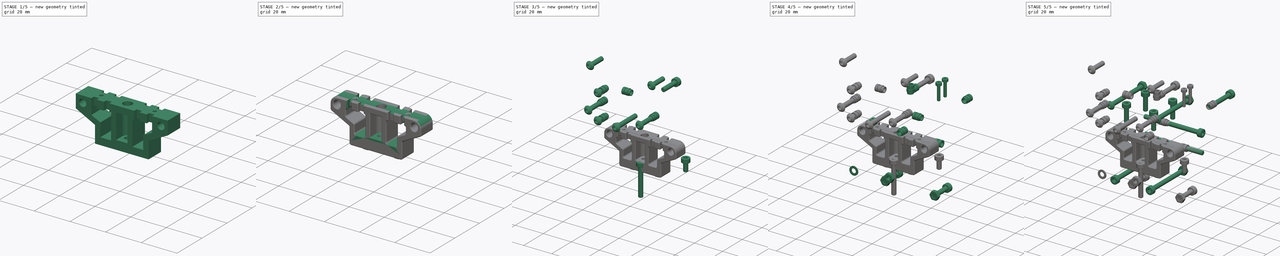
[diagram: build sequence overview — one tinted view per stage of 5, left to right]
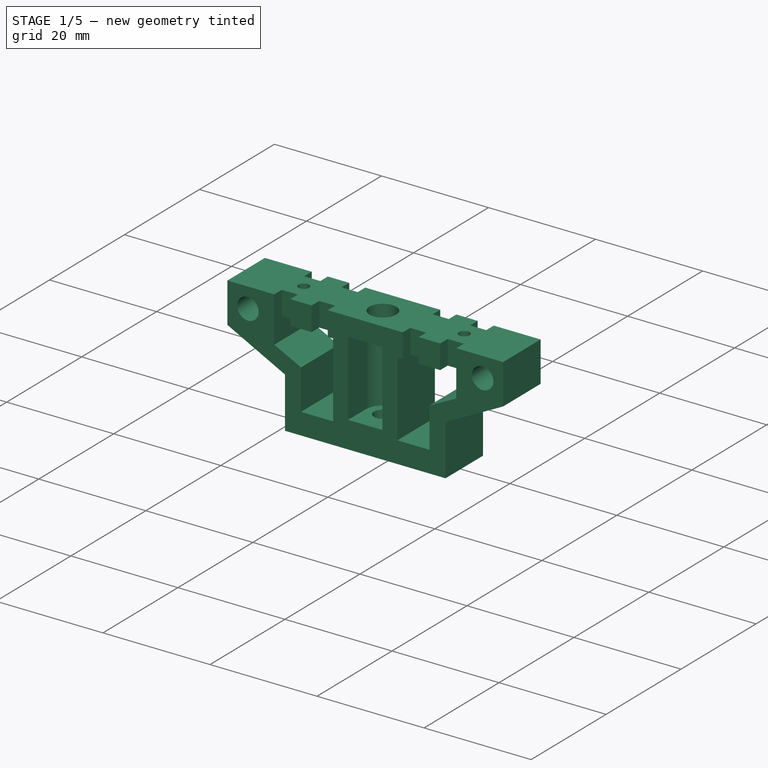
[diagram: stage 1 of 5 — iso view after this stage's code; geometry added in this stage tinted green]
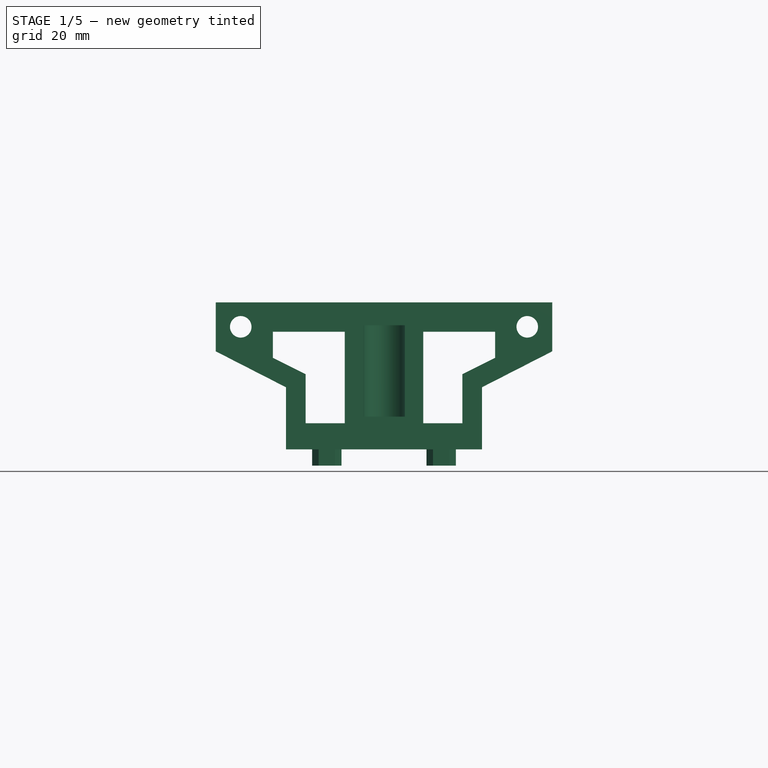
[diagram: stage 1 of 5 — front view after this stage's code; geometry added in this stage tinted green]
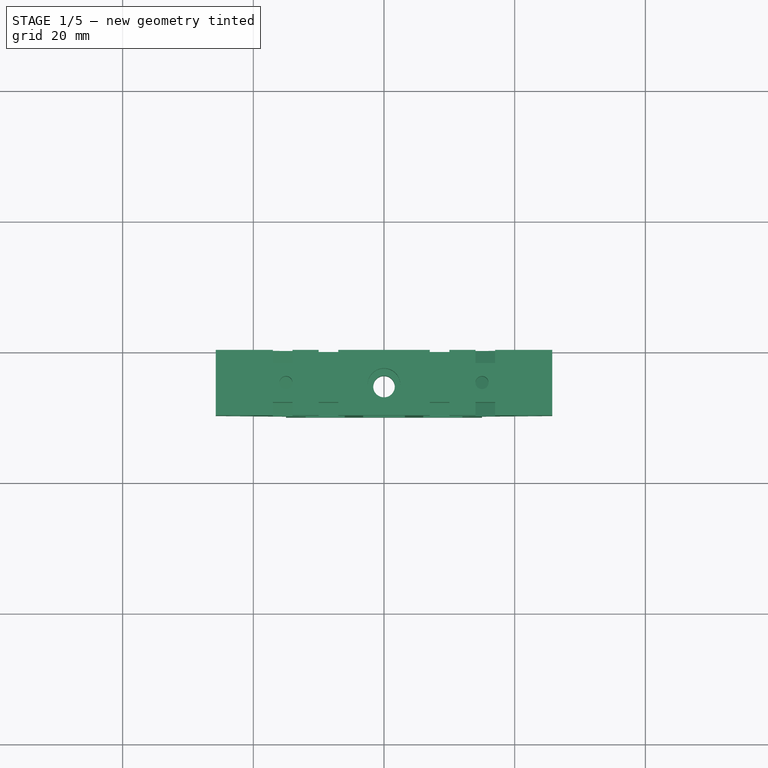
[diagram: stage 1 of 5 — top view after this stage's code; geometry added in this stage tinted green]
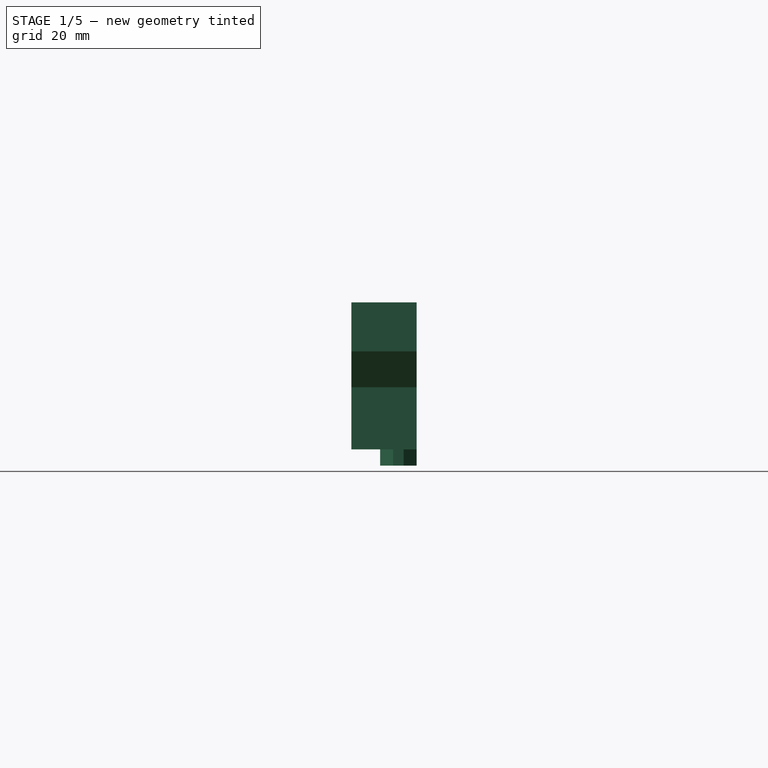
[diagram: stage 1 of 5 — right view after this stage's code; geometry added in this stage tinted green]
FCSTD DOCUMENT  (FreeCAD 0.19R24291 (Git))
Label: EBB-CAN-PCB-mounter
License: All rights reserved
LicenseURL: http://en.wikipedia.org/wiki/All_rights_reserved
objects: Part::Feature×58, Part::FeaturePython×47, App::Part×20, Sketcher::SketchObject×11, PartDesign::Pocket×9, PartDesign::Chamfer×9, PartDesign::Fillet×5, PartDesign::Pad×4, PartDesign::CoordinateSystem×2, PartDesign::Body×2, Part::Chamfer×1, PartDesign::FeatureBase×1
note: 176 computed .brp shape members not serialized (recipe doc carries the construction recipe); baked Part::Feature solids carry a one-line shape summary decoded from their .brp

FEATURE [Part::Feature] Part__Feature112001144  label="needle_bearing^idler_gear_assy_sherpa_mini_a3_r9c001"
  Placement = pos=(0,0,-4.35) rot=(0,0,1;0.1848rad)
  shape: bbox 4.8 x 4.8 x 6.5 mm, 82 faces (baked)
FEATURE [Part::Feature] Part__Feature112001145  label="needle_bearing^idler_gear_assy_sherpa_mini_a3_r9c"
  Placement = pos=(0,0,-4.35) rot=(0,0,1;0.1848rad)
  shape: bbox 1 x 1 x 4.25 mm, 8 faces (baked)
FEATURE [App::Part] needle_bearing_idler_gear_assy_sherpa_mini_a3_r9c  label="needle_bearing^idler_gear_assy_sherpa_mini_a3_r9c008"
  Group = -> [Part__Feature112001145,Part__Feature112001144,Part__Feature112001158,Part__Feature112001155,Part__Feature112001159,Part__Feature112001147,Part__Feature112001150,Part__Feature112001149]
  Origin = -> Origin209
FEATURE [App::Part] idler_gear_assy_sherpa_mini_a3_r9c  label="fly-gear"
  Group = -> [Part__Feature112001151,Part__Feature112001146,needle_bearing_idler_gear_assy_sherpa_mini_a3_r9c,needle_bearing_idler_gear_assy_sherpa_mini_a3_r9c001]
  Origin = -> Origin006
  Placement = pos=(4.4,-37,53) rot=(1,0,0;1.5708rad)
FEATURE [Part::Feature] Part__Feature001  label="0.5mm_shim^drive_core_sherpa_mini_a3_r9c"
  Placement = pos=(0,0,10.3) rot=(0,0,1;0rad)
  shape: bbox 7 x 7 x 0.5 mm, 14 faces (baked)
FEATURE [App::Part] drive_core_sherpa_mini_a3_r9c  label="driver-gear"
  Group = -> [Part__Feature112001172,Part__Feature001,Part__Feature002,Part__Feature112001173,MR85_2RS_drive_core_sherpa_mini_a3_r9c,MR85_2RS_drive_core_sherpa_mini_a3_r9c001,Part__Feature112001152]
  Origin = -> Origin002
  Placement = pos=(-4.3,-33,53) rot=(1,0,0;1.5708rad)
FEATURE [Part::Feature] Fusion036012039011002025018010027003  label="sherpa-knob"
  Placement = pos=(28.33,-36.7,62.6) rot=(0,-1,0;1.5708rad)
  shape: bbox 23.19 x 12.15 x 12.15 mm, 2718 faces (baked)
FEATURE [Part::Feature] Chamfer005021077002002  label="sherpa-body-main-modded"
  Placement = pos=(-4.3,-26.5,53) rot=(1,0,0;1.5708rad)
  shape: bbox 51.31 x 18.93 x 37.37 mm, 701 faces (baked)
FEATURE [Part::Feature] Part__Feature112001005  label="sherpa-body-back"
  Placement = pos=(-4.3,-19.5,53) rot=(1,0,0;1.5708rad)
  shape: bbox 51.24 x 9.996 x 47.65 mm, 527 faces (baked)
FEATURE [Part::Feature] Part__Feature112001006  label="sherpa-body-front"
  Placement = pos=(-4.32,-44,53) rot=(1,0,0;1.5708rad)
  shape: bbox 24.8 x 3.9 x 26.5 mm, 96 faces (baked)
FEATURE [Part::Feature] Part__Feature112001007  label="sherpa-arm"
  Placement = pos=(-4.32,-30.5,53) rot=(1,0,0;1.5708rad)
  shape: bbox 10.86 x 21.68 x 38.76 mm, 332 faces (baked)
FEATURE [Part::Feature] Part__Feature112001004  label="Nema-015"
  Placement = pos=(-0.02,-25.5007,41.66) rot=(1,0,0;1.5708rad)
  shape: bbox 50.9 x 23.5 x 36.5 mm, 227 faces (baked)
FEATURE [App::Part] Part198  label="sherpa-mini"
  Group = -> [Part__Feature112001004,Part__Feature112001005,Chamfer005021077002002,Part__Feature112001006,Part__Feature112001007,Fusion036012039011002025018010027003,HeatSet025,HeatSet026,HeatSet027,HeatSet028,HeatSet029,Screw1386,Screw1393,Screw1397,Screw1394,Screw1395,Screw1396,idler_gear_assy_sherpa_mini_a3_r9c,drive_core_sherpa_mini_a3_r9c,Screw1392,LCS_sherpa_mini,Cut001001001]
  Origin = -> Origin220
  Placement = pos=(0,32.5,-37.5) rot=(0,0,1;0rad)
FEATURE [Part::Feature] PCB001
  Placement = pos=(25.683,51.5,13.7282) rot=(0,0.707107,0.707107;3.14159rad)
  shape: bbox 52.04 x 13.37 x 38.94 mm, 34582 faces, 2414 solids (baked)
FEATURE [Sketcher::SketchObject] Sketch
  FullyConstrained = true
  MapMode = 5
  Placement = pos=(0,0,0) rot=(1,0,0;1.5708rad)
  Support = -> [XZ_Plane221]
  sketch-geometry (10):
    g0: Circle CenterX=-21.925 CenterY=16.75 CenterZ=0 NormalX=0 NormalY=0 NormalZ=1 AngleXU=0 Radius=2
    g1: Circle CenterX=21.925 CenterY=16.75 CenterZ=0 NormalX=0 NormalY=0 NormalZ=1 AngleXU=0 Radius=2
    g2: LineSegment StartX=-25.75 StartY=20.5 StartZ=0 EndX=25.75 EndY=20.5 EndZ=0
    g3: LineSegment StartX=-25.75 StartY=20.5 StartZ=0 EndX=-25.75 EndY=13 EndZ=0
    g4: LineSegment StartX=25.75 StartY=20.5 StartZ=0 EndX=25.75 EndY=13 EndZ=0
    g5: LineSegment StartX=25.75 StartY=13 StartZ=0 EndX=15 EndY=7.5 EndZ=0
    g6: LineSegment StartX=-25.75 StartY=13 StartZ=0 EndX=-15 EndY=7.5 EndZ=0
    g7: LineSegment StartX=-15 StartY=7.5 StartZ=0 EndX=-15 EndY=0 EndZ=0
    g8: LineSegment StartX=-15 StartY=0 StartZ=0 EndX=15 EndY=0 EndZ=0
    g9: LineSegment StartX=15 StartY=0 StartZ=0 EndX=15 EndY=7.5 EndZ=0
  constraints (30):
    c: Horizontal(g1,g0)
    c: Equal(g0,g1)
    c: Radius(g1) = 2
    c: DistanceY(g-1,g0) = 16.75
    c: DistanceX(g0,g1) = 43.85
    c: DistanceX(g0,g-1) = 21.925
    c: Horizontal(g2)
    c: DistanceX(g2,g2) = 51.5
    c: DistanceX(g2,g-1) = 25.75
    c: DistanceY(g0,g2) = 3.75
    c: Coincident(g3,g2)
    c: Vertical(g3)
    c: Coincident(g4,g2)
    c: Vertical(g4)
    c: Horizontal(g4,g3)
    c: DistanceY(g3,g0) = 3.75
    c: Coincident(g5,g4)
    c: Coincident(g6,g3)
    c: DistanceX(g-1,g5) = 15
    c: DistanceX(g6,g-1) = 15
    c: Horizontal(g6,g5)
    c: DistanceY(g-1,g6) = 7.5
    c: Coincident(g6,g7)
    c: PointOnObject(g7,g-1)
    c: Vertical(g7)
    c: Coincident(g7,g8)
    c: PointOnObject(g8,g-1)
    c: Coincident(g8,g9)
    c: Coincident(g9,g5)
    c: Vertical(g9)
FEATURE [PartDesign::Pad] Pad
  Direction = (1,1,1)
  Length = 10
  Length2 = 100
  Placement = pos=(0,0,0) rot=(1,0,0;1.5708rad)
  Profile = -> Sketch
  Type = 0
FEATURE [Sketcher::SketchObject] Sketch001
  FullyConstrained = true
  MapMode = 5
  Placement = pos=(0,0,0) rot=(1,0,0;3.14159rad)
  Support = -> [Pad]
  sketch-geometry (1):
    g0: Circle CenterX=0 CenterY=5.3 CenterZ=0 NormalX=0 NormalY=0 NormalZ=1 AngleXU=0 Radius=1.65
  constraints (3):
    c: PointOnObject(g0,g-2)
    c: DistanceY(g-1,g0) = 5.3
    c: Radius(g0) = 1.65
FEATURE [PartDesign::Pocket] Pocket
  BaseFeature = -> Pad
  Length = 5
  Length2 = 100
  Placement = pos=(0,0,0) rot=(1,0,0;1.5708rad)
  Profile = -> Sketch001
  Type = 0
FEATURE [Sketcher::SketchObject] Sketch002
  FullyConstrained = true
  MapMode = 5
  Placement = pos=(0,3.4e-15,5) rot=(1,0,0;3.14159rad)
  Support = -> [Pocket]
  sketch-geometry (4):
    g0: ArcOfCircle CenterX=0 CenterY=5.3 CenterZ=0 NormalX=0 NormalY=0 NormalZ=1 AngleXU=0 Radius=3.2 StartAngle=3.14159 EndAngle=6.28319
    g1: LineSegment StartX=-3.2 StartY=5.3 StartZ=0 EndX=-3.2 EndY=10 EndZ=0
    g2: LineSegment StartX=-3.2 StartY=10 StartZ=0 EndX=3.2 EndY=10 EndZ=0
    g3: LineSegment StartX=3.2 StartY=10 StartZ=0 EndX=3.2 EndY=5.3 EndZ=0
  constraints (12):
    c: PointOnObject(g0,g-2)
    c: Horizontal(g0,g0)
    c: Horizontal(g0,g0)
    c: DistanceY(g-1,g0) = 5.3
    c: Tangent(g0,g1) = 1.5708
    c: Coincident(g1,g2)
    c: Horizontal(g2)
    c: Coincident(g2,g3)
    c: Coincident(g3,g0)
    c: Vertical(g3)
    c: DistanceY(g-1,g1) = 10
    c: Radius(g0) = 3.2
FEATURE [PartDesign::Pocket] Pocket001
  BaseFeature = -> Pocket
  Length = 12
  Length2 = 100
  Placement = pos=(0,0,0) rot=(1,0,0;1.5708rad)
  Profile = -> Sketch002
  Type = 0
FEATURE [Sketcher::SketchObject] Sketch003
  FullyConstrained = true
  MapMode = 5
  Placement = pos=(0,2.01e-14,17) rot=(1,0,0;3.14159rad)
  Support = -> [Pocket001]
  sketch-geometry (1):
    g0: Circle CenterX=0 CenterY=5.3 CenterZ=0 NormalX=0 NormalY=0 NormalZ=1 AngleXU=0 Radius=2.5
  constraints (3):
    c: PointOnObject(g0,g-2)
    c: DistanceY(g-1,g0) = 5.3
    c: Radius(g0) = 2.5
FEATURE [PartDesign::Pocket] Pocket002
  BaseFeature = -> Pocket001
  Length = 5
  Length2 = 100
  Placement = pos=(0,0,0) rot=(1,0,0;1.5708rad)
  Profile = -> Sketch003
  Type = 1
FEATURE [Sketcher::SketchObject] Sketch004
  FullyConstrained = true
  MapMode = 5
  Placement = pos=(0,-10,2.2e-15) rot=(1,0,0;1.5708rad)
  Support = -> [Pocket002]
  sketch-geometry (12):
    g0: LineSegment StartX=-17 StartY=16 StartZ=0 EndX=-6 EndY=16 EndZ=0
    g1: LineSegment StartX=-6 StartY=16 StartZ=0 EndX=-6 EndY=4 EndZ=0
    g2: LineSegment StartX=-6 StartY=4 StartZ=0 EndX=-12 EndY=4 EndZ=0
    g3: LineSegment StartX=-12 StartY=4 StartZ=0 EndX=-12 EndY=9.5 EndZ=0
    g4: LineSegment StartX=-12 StartY=9.5 StartZ=0 EndX=-17 EndY=12 EndZ=0
    g5: LineSegment StartX=-17 StartY=12 StartZ=0 EndX=-17 EndY=16 EndZ=0
    g6: LineSegment StartX=6 StartY=16 StartZ=0 EndX=17 EndY=16 EndZ=0
    g7: LineSegment StartX=17 StartY=16 StartZ=0 EndX=17 EndY=12 EndZ=0
    g8: LineSegment StartX=17 StartY=12 StartZ=0 EndX=12 EndY=9.5 EndZ=0
    g9: LineSegment StartX=12 StartY=9.5 StartZ=0 EndX=12 EndY=4 EndZ=0
    g10: LineSegment StartX=12 StartY=4 StartZ=0 EndX=6 EndY=4 EndZ=0
    g11: LineSegment StartX=6 StartY=4 StartZ=0 EndX=6 EndY=16 EndZ=0
  constraints (36):
    c: Horizontal(g0)
    c: Coincident(g0,g1)
    c: Vertical(g1)
    c: Coincident(g1,g2)
    c: Horizontal(g2)
    c: Coincident(g2,g3)
    c: Coincident(g3,g4)
    c: Coincident(g4,g5)
    c: Coincident(g5,g0)
    c: Horizontal(g6)
    c: Coincident(g6,g7)
    c: Coincident(g7,g8)
    c: Coincident(g8,g9)
    c: Coincident(g9,g10)
    c: Horizontal(g10)
    c: Coincident(g10,g11)
    c: Coincident(g11,g6)
    c: Vertical(g11)
    c: Vertical(g3)
    c: Vertical(g9)
    c: Vertical(g7)
    c: Vertical(g5)
    c: Horizontal(g0,g6)
    c: Horizontal(g1,g10)
    c: Horizontal(g3,g8)
    c: Horizontal(g4,g7)
    c: DistanceX(g0,g-1) = 6
    c: DistanceX(g-1,g6) = 6
    c: DistanceY(g-1,g1) = 4
    c: DistanceY(g-1,g0) = 16
    c: DistanceX(g2,g2) = 6
    c: DistanceX(g10,g10) = 6
    c: DistanceX(g0,g0) = 11
    c: DistanceX(g6,g6) = 11
    c: DistanceY(g5,g5) = 4
    c: DistanceY(g3,g3) = 5.5
FEATURE [PartDesign::Pocket] Pocket003
  BaseFeature = -> Pocket002
  Length = 5
  Length2 = 100
  Placement = pos=(0,0,0) rot=(1,0,0;1.5708rad)
  Profile = -> Sketch004
  Type = 1
FEATURE [Sketcher::SketchObject] Sketch005
  FullyConstrained = true
  MapMode = 5
  Placement = pos=(0,0,0) rot=(1,0,0;3.14159rad)
  Support = -> [Pocket003]
  sketch-geometry (8):
    g0: LineSegment StartX=-11 StartY=0 StartZ=0 EndX=-6.5 EndY=0 EndZ=0
    g1: LineSegment StartX=-6.5 StartY=0 StartZ=0 EndX=-6.5 EndY=5.6 EndZ=0
    g2: LineSegment StartX=-6.5 StartY=5.6 StartZ=0 EndX=-11 EndY=5.6 EndZ=0
    g3: LineSegment StartX=-11 StartY=5.6 StartZ=0 EndX=-11 EndY=0 EndZ=0
    g4: LineSegment StartX=6.5 StartY=0 StartZ=0 EndX=11 EndY=0 EndZ=0
    g5: LineSegment StartX=11 StartY=0 StartZ=0 EndX=11 EndY=5.6 EndZ=0
    g6: LineSegment StartX=11 StartY=5.6 StartZ=0 EndX=6.5 EndY=5.6 EndZ=0
    g7: LineSegment StartX=6.5 StartY=5.6 StartZ=0 EndX=6.5 EndY=0 EndZ=0
  constraints (24):
    c: Coincident(g0,g1)
    c: Coincident(g1,g2)
    c: Coincident(g2,g3)
    c: Coincident(g3,g0)
    c: Horizontal(g0)
    c: Horizontal(g2)
    c: Vertical(g1)
    c: Vertical(g3)
    c: PointOnObject(g0,g-1)
    c: Coincident(g4,g5)
    c: Coincident(g5,g6)
    c: Coincident(g6,g7)
    c: Coincident(g7,g4)
    c: Horizontal(g4)
    c: Horizontal(g6)
    c: Vertical(g5)
    c: Vertical(g7)
    c: PointOnObject(g4,g-1)
    c: Horizontal(g1,g6)
    c: DistanceY(g3,g3) = 5.6
    c: DistanceX(g0,g-1) = 6.5
    c: DistanceX(g-1,g4) = 6.5
    c: DistanceX(g0,g0) = 4.5
    c: DistanceX(g4,g4) = 4.5
FEATURE [PartDesign::Pad] Pad001
  BaseFeature = -> Pocket003
  Direction = (1,1,1)
  Length = 2.5
  Length2 = 100
  Placement = pos=(0,0,0) rot=(1,0,0;1.5708rad)
  Profile = -> Sketch005
  Type = 0
FEATURE [PartDesign::Chamfer] Chamfer
  Angle = 45
  Base = -> Pad001 [Edge71,Edge72,Edge74,Edge75]
  BaseFeature = -> Pad001
  ChamferType = 1
  FlipDirection = false
  Placement = pos=(0,0,0) rot=(1,0,0;1.5708rad)
  Size = 1
  Size2 = 2
  SupportTransform = false
FEATURE [PartDesign::Chamfer] Chamfer005021077002006007019003032019002
  Angle = 45
  Base = -> Chamfer [Edge27,Edge93]
  BaseFeature = -> Chamfer
  ChamferType = 1
  FlipDirection = false
  Placement = pos=(0,0,0) rot=(1,0,0;1.5708rad)
  Size = 1
  Size2 = 2
  SupportTransform = false
FEATURE [PartDesign::Chamfer] Chamfer005021077002006007019003032019003
  Angle = 45
  Base = -> Chamfer005021077002006007019003032019002 [Edge97]
  BaseFeature = -> Chamfer005021077002006007019003032019002
  ChamferType = 1
  FlipDirection = false
  Placement = pos=(0,0,0) rot=(1,0,0;1.5708rad)
  Size = 2
  Size2 = 1
  SupportTransform = false
FEATURE [PartDesign::Chamfer] Chamfer005021077002006007019003032019004
  Angle = 45
  Base = -> Chamfer005021077002006007019003032019003 [Edge96]
  BaseFeature = -> Chamfer005021077002006007019003032019003
  ChamferType = 1
  FlipDirection = false
  Placement = pos=(0,0,0) rot=(1,0,0;1.5708rad)
  Size = 2
  Size2 = 1
  SupportTransform = false
FEATURE [Sketcher::SketchObject] Sketch006
  ExternalGeometry = -> [Chamfer005021077002006007019003032019004]
  FullyConstrained = true
  MapMode = 5
  Placement = pos=(0,0,0) rot=(-1,0,0;1.5708rad)
  Support = -> [Chamfer005021077002006007019003032019004]
  sketch-geometry (4):
    g0: Circle CenterX=21.925 CenterY=-16.75 CenterZ=0 NormalX=0 NormalY=0 NormalZ=1 AngleXU=0 Radius=2.5
    g1: Circle CenterX=-21.925 CenterY=-16.75 CenterZ=0 NormalX=0 NormalY=0 NormalZ=1 AngleXU=0 Radius=2.5
    g2: Circle CenterX=-21.925 CenterY=-16.75 CenterZ=0 NormalX=0 NormalY=0 NormalZ=1 AngleXU=0 Radius=1.65
    g3: Circle CenterX=21.925 CenterY=-16.75 CenterZ=0 NormalX=0 NormalY=0 NormalZ=1 AngleXU=0 Radius=1.65
  constraints (8):
    c: Coincident(g0,g-4)
    c: Coincident(g1,g-3)
    c: Coincident(g2,g1)
    c: Coincident(g3,g0)
    c: Equal(g3,g2)
    c: Equal(g1,g0)
    c: Radius(g3) = 1.65
    c: Radius(g0) = 2.5
FEATURE [PartDesign::Pad] Pad002
  BaseFeature = -> Chamfer005021077002006007019003032019004
  Direction = (1,1,1)
  Length = 5
  Length2 = 100
  Placement = pos=(0,0,0) rot=(1,0,0;1.5708rad)
  Profile = -> Sketch006
  Reversed = true
  Type = 0
FEATURE [PartDesign::Body] Body
  Group = -> [Sketch,Pad,Sketch001,Pocket,Sketch002,Pocket001,Sketch003,Pocket002,Sketch004,Pocket003,Sketch005,Pad001,Chamfer,Chamfer005021077002006007019003032019002,Chamfer005021077002006007019003032019003,Chamfer005021077002006007019003032019004,Sketch006,Pad002,Fillet,Fillet001,Fillet002,Sketch007,Pocket004,Sketch008,Pocket005,Chamfer005021077002006007019003032019005,+2 more]
  Origin = -> Origin221
  Placement = pos=(0,44.3,13) rot=(0,0,1;0rad)
  Tip = -> Chamfer005021077002006007019003032019008
FEATURE [Part::Feature] Chamfer005021077002006007019003032019007001
  shape: bbox 7.5 x 7.5 x 6.75 mm, 8 faces (baked)
FEATURE [PartDesign::FeatureBase] Clone
  BaseFeature = -> Pad002
  Placement = pos=(0,0,0) rot=(1,0,0;1.5708rad)
FEATURE [PartDesign::Pad] Pad003
  BaseFeature = -> Clone
  Direction = (1,1,1)
  Length = 2
  Length2 = 100
  Placement = pos=(0,0,0) rot=(1,0,0;1.5708rad)
  Profile = -> Clone [Face1,Face21,Face43]
  Reversed = true
  Type = 0
FEATURE [PartDesign::Pocket] Pocket006
  BaseFeature = -> Pad003
  Length = 2
  Length2 = 100
  Placement = pos=(0,0,0) rot=(1,0,0;1.5708rad)
  Profile = -> Pad003 [Face56,Face67,Face72]
  Refine = true
  Type = 0
FEATURE [Sketcher::SketchObject] Sketch009
  ExternalGeometry = -> [Pocket006]
  FullyConstrained = true
  MapMode = 5
  Placement = pos=(0,9e-15,20.5) rot=(0,0,1;3.14159rad)
  Support = -> [Pocket006]
  sketch-geometry (34):
    g0: LineSegment StartX=-17 StartY=0 StartZ=0 EndX=-14 EndY=0 EndZ=0
    g1: LineSegment StartX=-14 StartY=0 StartZ=0 EndX=-14 EndY=2 EndZ=0
    g2: LineSegment StartX=-14 StartY=2 StartZ=0 EndX=-17 EndY=2 EndZ=0
    g3: LineSegment StartX=-17 StartY=2 StartZ=0 EndX=-17 EndY=0 EndZ=0
    g4: LineSegment StartX=-10 StartY=0 StartZ=0 EndX=-7 EndY=0 EndZ=0
    g5: LineSegment StartX=-7 StartY=0 StartZ=0 EndX=-7 EndY=2 EndZ=0
    g6: LineSegment StartX=-7 StartY=2 StartZ=0 EndX=-10 EndY=2 EndZ=0
    g7: LineSegment StartX=-10 StartY=2 StartZ=0 EndX=-10 EndY=0 EndZ=0
    g8: LineSegment StartX=7 StartY=0 StartZ=0 EndX=10 EndY=0 EndZ=0
    g9: LineSegment StartX=10 StartY=0 StartZ=0 EndX=10 EndY=2 EndZ=0
    g10: LineSegment StartX=10 StartY=2 StartZ=0 EndX=7 EndY=2 EndZ=0
    g11: LineSegment StartX=7 StartY=2 StartZ=0 EndX=7 EndY=0 EndZ=0
    g12: LineSegment StartX=14 StartY=0 StartZ=0 EndX=17 EndY=0 EndZ=0
    g13: LineSegment StartX=17 StartY=0 StartZ=0 EndX=17 EndY=2 EndZ=0
    g14: LineSegment StartX=17 StartY=2 StartZ=0 EndX=14 EndY=2 EndZ=0
    g15: LineSegment StartX=14 StartY=2 StartZ=0 EndX=14 EndY=0 EndZ=0
    g16: LineSegment StartX=-17 StartY=10 StartZ=0 EndX=-14 EndY=10 EndZ=0
    g17: LineSegment StartX=-14 StartY=10 StartZ=0 EndX=-14 EndY=8 EndZ=0
    g18: LineSegment StartX=-14 StartY=8 StartZ=0 EndX=-17 EndY=8 EndZ=0
    g19: LineSegment StartX=-17 StartY=8 StartZ=0 EndX=-17 EndY=10 EndZ=0
    g20: LineSegment StartX=-10 StartY=10 StartZ=0 EndX=-7 EndY=10 EndZ=0
    g21: LineSegment StartX=-7 StartY=10 StartZ=0 EndX=-7 EndY=8 EndZ=0
    g22: LineSegment StartX=-7 StartY=8 StartZ=0 EndX=-10 EndY=8 EndZ=0
    g23: LineSegment StartX=-10 StartY=8 StartZ=0 EndX=-10 EndY=10 EndZ=0
    g24: LineSegment StartX=7 StartY=10 StartZ=0 EndX=10 EndY=10 EndZ=0
    g25: LineSegment StartX=10 StartY=10 StartZ=0 EndX=10 EndY=8 EndZ=0
    g26: LineSegment StartX=10 StartY=8 StartZ=0 EndX=7 EndY=8 EndZ=0
    g27: LineSegment StartX=7 StartY=8 StartZ=0 EndX=7 EndY=10 EndZ=0
    g28: LineSegment StartX=14 StartY=10 StartZ=0 EndX=17 EndY=10 EndZ=0
    g29: LineSegment StartX=17 StartY=10 StartZ=0 EndX=17 EndY=8 EndZ=0
    g30: LineSegment StartX=17 StartY=8 StartZ=0 EndX=14 EndY=8 EndZ=0
    g31: LineSegment StartX=14 StartY=8 StartZ=0 EndX=14 EndY=10 EndZ=0
    g32: Circle CenterX=-15 CenterY=5 CenterZ=0 NormalX=0 NormalY=0 NormalZ=1 AngleXU=0 Radius=1
    g33: Circle CenterX=15 CenterY=5 CenterZ=0 NormalX=0 NormalY=0 NormalZ=1 AngleXU=0 Radius=1
  constraints (102):
    c: Coincident(g0,g1)
    c: Coincident(g1,g2)
    c: Coincident(g2,g3)
    c: Coincident(g3,g0)
    c: Horizontal(g0)
    c: Horizontal(g2)
    c: Vertical(g1)
    c: Vertical(g3)
    c: PointOnObject(g0,g-1)
    c: Coincident(g4,g5)
    c: Coincident(g5,g6)
    c: Coincident(g6,g7)
    c: Coincident(g7,g4)
    c: Horizontal(g4)
    c: Horizontal(g6)
    c: Vertical(g5)
    c: Vertical(g7)
    c: PointOnObject(g4,g-1)
    c: Coincident(g8,g9)
    c: Coincident(g9,g10)
    c: Coincident(g10,g11)
    c: Coincident(g11,g8)
    c: Horizontal(g8)
    c: Horizontal(g10)
    c: Vertical(g9)
    c: Vertical(g11)
    c: PointOnObject(g8,g-1)
    c: Coincident(g12,g13)
    c: Coincident(g13,g14)
    c: Coincident(g14,g15)
    c: Coincident(g15,g12)
    c: Horizontal(g12)
    c: Horizontal(g14)
    c: Vertical(g13)
    c: Vertical(g15)
    c: PointOnObject(g12,g-1)
    c: Coincident(g16,g17)
    c: Coincident(g17,g18)
    c: Coincident(g18,g19)
    c: Coincident(g19,g16)
    c: Horizontal(g16)
    c: Horizontal(g18)
    c: Vertical(g17)
    c: Vertical(g19)
    c: PointOnObject(g16,g-3)
    c: Coincident(g20,g21)
    c: Coincident(g21,g22)
    c: Coincident(g22,g23)
    c: Coincident(g23,g20)
    c: Horizontal(g20)
    c: Horizontal(g22)
    c: Vertical(g21)
    c: Vertical(g23)
    c: PointOnObject(g20,g-3)
    c: Coincident(g24,g25)
    c: Coincident(g25,g26)
    c: Coincident(g26,g27)
    c: Coincident(g27,g24)
    c: Horizontal(g24)
    c: Horizontal(g26)
    c: Vertical(g25)
    c: Vertical(g27)
    c: PointOnObject(g24,g-3)
    c: Coincident(g28,g29)
    c: Coincident(g29,g30)
    c: Coincident(g30,g31)
    c: Coincident(g31,g28)
    c: Horizontal(g28)
    c: Horizontal(g30)
    c: Vertical(g29)
    c: Vertical(g31)
    c: PointOnObject(g28,g-3)
    c: Equal(g18,g2)
    c: Equal(g2,g6)
    c: Equal(g6,g22)
    c: Equal(g22,g26)
    c: Equal(g26,g10)
    c: Equal(g10,g14)
    c: Equal(g14,g30)
    c: DistanceX(g18,g18) = 3
    c: Equal(g1,g17)
    c: Equal(g17,g21)
    c: Equal(g21,g5)
    c: Equal(g5,g9)
    c: Equal(g9,g25)
    c: Equal(g25,g29)
    c: Equal(g29,g13)
    c: DistanceY(g13,g13) = 2
    c: DistanceX(g4,g-1) = 7
    c: DistanceX(g-1,g8) = 7
    c: DistanceX(g8,g12) = 4
    c: DistanceX(g0,g4) = 4
    c: Vertical(g2,g18)
    c: Vertical(g6,g22)
    c: Vertical(g10,g26)
    c: Vertical(g13,g29)
    c: DistanceX(g32,g-1) = 15
    c: DistanceX(g-1,g33) = 15
    c: Horizontal(g33,g32)
    c: Equal(g32,g33)
    c: Radius(g33) = 1
    c: DistanceY(g-1,g32) = 5
FEATURE [PartDesign::Pocket] Pocket007
  BaseFeature = -> Pocket006
  Length = 0
  Length2 = 100
  Placement = pos=(0,0,0) rot=(1,0,0;1.5708rad)
  Profile = -> Sketch009
  Type = 3
  UpToFace = -> Pocket006 [Face19]
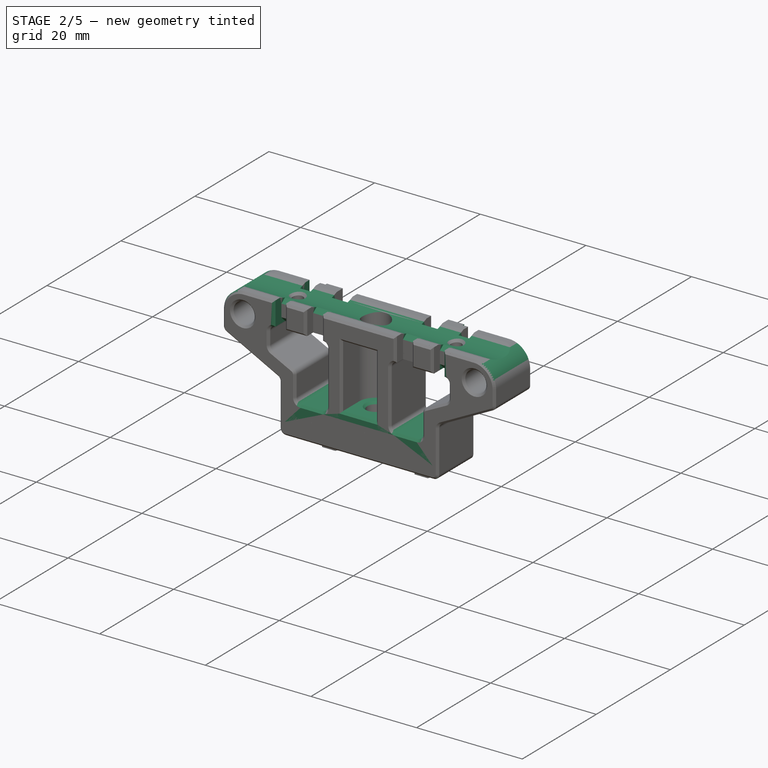
[diagram: stage 2 of 5 — iso view after this stage's code; geometry added in this stage tinted green]
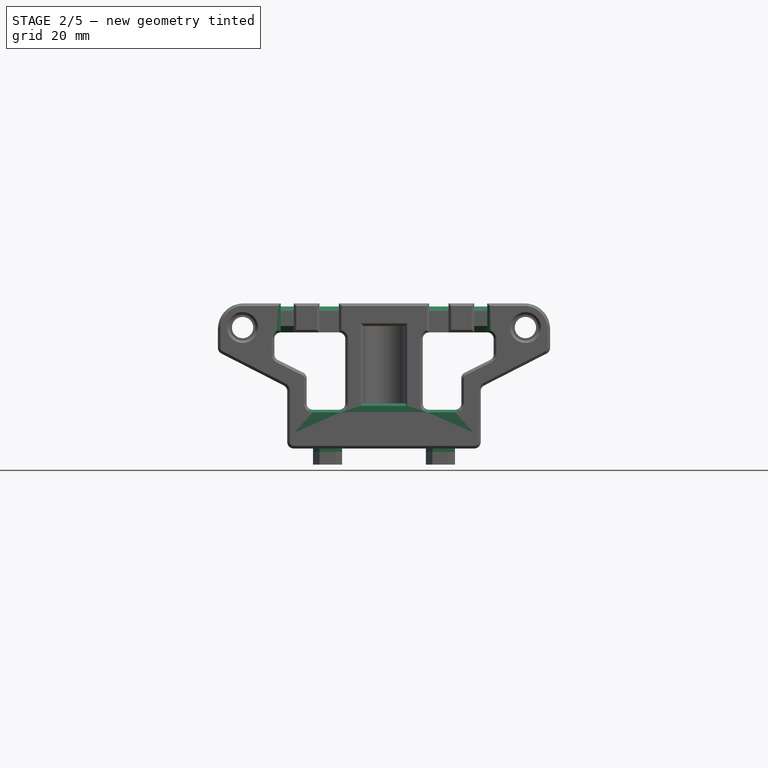
[diagram: stage 2 of 5 — front view after this stage's code; geometry added in this stage tinted green]
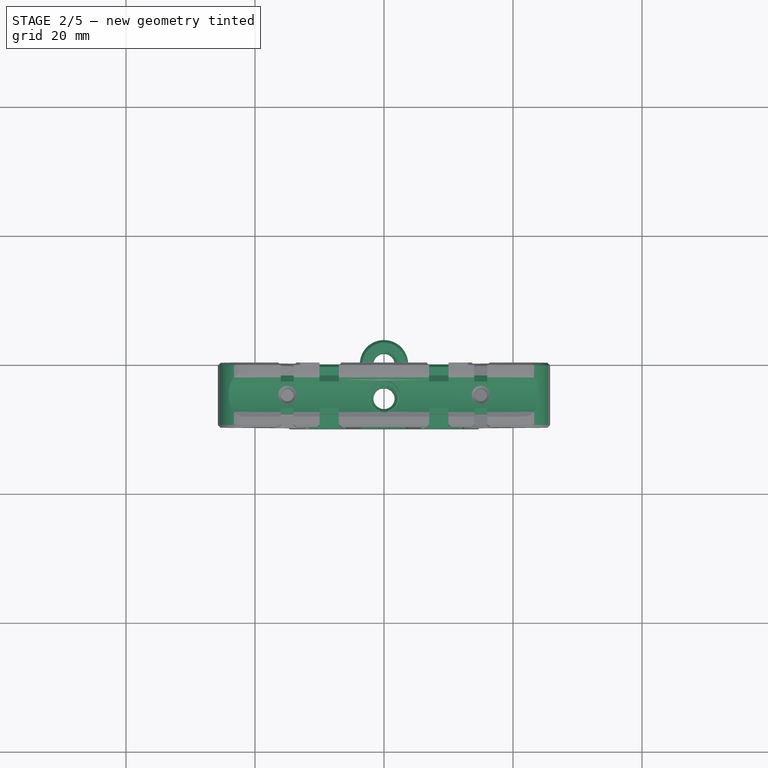
[diagram: stage 2 of 5 — top view after this stage's code; geometry added in this stage tinted green]
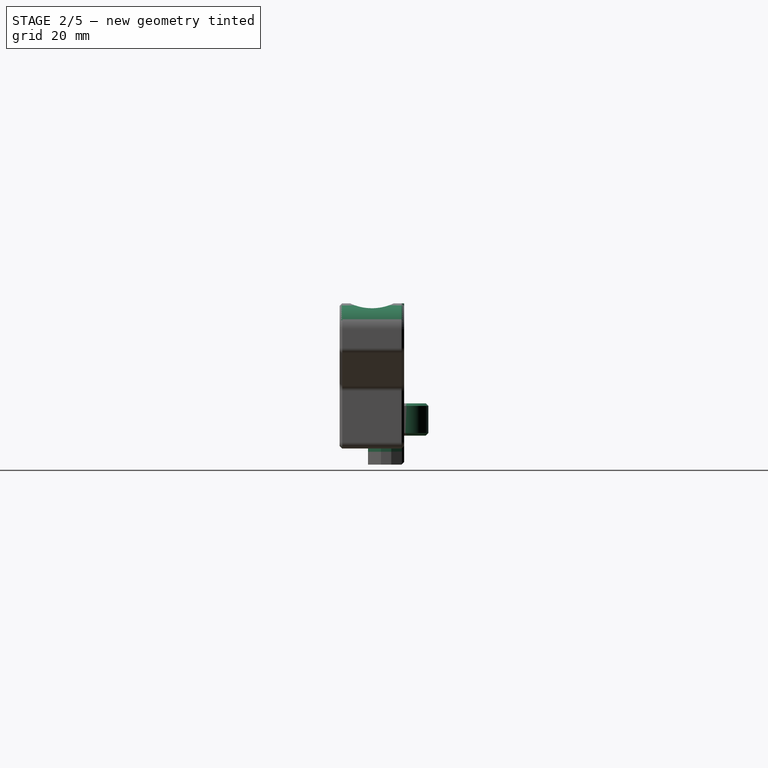
[diagram: stage 2 of 5 — right view after this stage's code; geometry added in this stage tinted green]
FEATURE [PartDesign::Fillet] Fillet
  Base = -> Pad002 [Edge109,Edge110]
  BaseFeature = -> Pad002
  Placement = pos=(0,0,0) rot=(1,0,0;1.5708rad)
  Radius = 4
  SupportTransform = false
FEATURE [PartDesign::Fillet] Fillet001
  Base = -> Fillet [Edge42,Edge50,Edge46,Edge51,Edge48,Edge44]
  BaseFeature = -> Fillet
  Placement = pos=(0,0,0) rot=(1,0,0;1.5708rad)
  Radius = 1
  SupportTransform = false
FEATURE [PartDesign::Fillet] Fillet002
  Base = -> Fillet001 [Edge108,Edge110,Edge107,Edge114,Edge116,Edge112,Edge99,Edge101,Edge95,Edge94,Edge97,Edge103]
  BaseFeature = -> Fillet001
  Placement = pos=(0,0,0) rot=(1,0,0;1.5708rad)
  Radius = 1
  SupportTransform = false
FEATURE [Sketcher::SketchObject] Sketch007
  FullyConstrained = true
  MapMode = 5
  Placement = pos=(-25.75,0,0) rot=(0.707107,0,-0.707107;3.14159rad)
  Support = -> [Fillet002]
  sketch-geometry (1):
    g0: Circle CenterX=-27.75 CenterY=5 CenterZ=0 NormalX=0 NormalY=0 NormalZ=1 AngleXU=0 Radius=8
  constraints (3):
    c: DistanceY(g-1,g0) = 5
    c: Radius(g0) = 8
    c: DistanceX(g0,g-1) = 27.75
FEATURE [PartDesign::Pocket] Pocket004
  BaseFeature = -> Fillet002
  Length = 5
  Length2 = 100
  Placement = pos=(0,0,0) rot=(1,0,0;1.5708rad)
  Profile = -> Sketch007
  Refine = true
  Type = 1
FEATURE [Sketcher::SketchObject] Sketch008
  FullyConstrained = true
  MapMode = 5
  Placement = pos=(0,9e-15,20.5) rot=(0,0,1;3.14159rad)
  Support = -> [Pocket004]
  sketch-geometry (34):
    g0: Circle CenterX=-15 CenterY=5 CenterZ=0 NormalX=0 NormalY=0 NormalZ=1 AngleXU=0 Radius=1
    g1: Circle CenterX=15 CenterY=5 CenterZ=0 NormalX=0 NormalY=0 NormalZ=1 AngleXU=0 Radius=1
    g2: LineSegment StartX=-16 StartY=0 StartZ=0 EndX=-13 EndY=0 EndZ=0
    g3: LineSegment StartX=-13 StartY=0 StartZ=0 EndX=-13 EndY=2 EndZ=0
    g4: LineSegment StartX=-13 StartY=2 StartZ=0 EndX=-16 EndY=2 EndZ=0
    g5: LineSegment StartX=-16 StartY=2 StartZ=0 EndX=-16 EndY=0 EndZ=0
    g6: LineSegment StartX=-10 StartY=0 StartZ=0 EndX=-7 EndY=0 EndZ=0
    g7: LineSegment StartX=-7 StartY=0 StartZ=0 EndX=-7 EndY=2 EndZ=0
    g8: LineSegment StartX=-7 StartY=2 StartZ=0 EndX=-10 EndY=2 EndZ=0
    g9: LineSegment StartX=-10 StartY=2 StartZ=0 EndX=-10 EndY=0 EndZ=0
    g10: LineSegment StartX=7 StartY=0 StartZ=0 EndX=10 EndY=0 EndZ=0
    g11: LineSegment StartX=10 StartY=0 StartZ=0 EndX=10 EndY=2 EndZ=0
    g12: LineSegment StartX=10 StartY=2 StartZ=0 EndX=7 EndY=2 EndZ=0
    g13: LineSegment StartX=7 StartY=2 StartZ=0 EndX=7 EndY=0 EndZ=0
    g14: LineSegment StartX=16 StartY=0 StartZ=0 EndX=13 EndY=0 EndZ=0
    g15: LineSegment StartX=13 StartY=0 StartZ=0 EndX=13 EndY=2 EndZ=0
    g16: LineSegment StartX=13 StartY=2 StartZ=0 EndX=16 EndY=2 EndZ=0
    g17: LineSegment StartX=16 StartY=2 StartZ=0 EndX=16 EndY=0 EndZ=0
    g18: LineSegment StartX=16 StartY=10 StartZ=0 EndX=13 EndY=10 EndZ=0
    g19: LineSegment StartX=13 StartY=10 StartZ=0 EndX=13 EndY=8 EndZ=0
    g20: LineSegment StartX=13 StartY=8 StartZ=0 EndX=16 EndY=8 EndZ=0
    g21: LineSegment StartX=16 StartY=8 StartZ=0 EndX=16 EndY=10 EndZ=0
    g22: LineSegment StartX=10 StartY=10 StartZ=0 EndX=7 EndY=10 EndZ=0
    g23: LineSegment StartX=7 StartY=10 StartZ=0 EndX=7 EndY=8 EndZ=0
    g24: LineSegment StartX=7 StartY=8 StartZ=0 EndX=10 EndY=8 EndZ=0
    g25: LineSegment StartX=10 StartY=8 StartZ=0 EndX=10 EndY=10 EndZ=0
    g26: LineSegment StartX=-7 StartY=10 StartZ=0 EndX=-10 EndY=10 EndZ=0
    g27: LineSegment StartX=-10 StartY=10 StartZ=0 EndX=-10 EndY=8 EndZ=0
    g28: LineSegment StartX=-10 StartY=8 StartZ=0 EndX=-7 EndY=8 EndZ=0
    g29: LineSegment StartX=-7 StartY=8 StartZ=0 EndX=-7 EndY=10 EndZ=0
    g30: LineSegment StartX=-13 StartY=10 StartZ=0 EndX=-16 EndY=10 EndZ=0
    g31: LineSegment StartX=-16 StartY=10 StartZ=0 EndX=-16 EndY=8 EndZ=0
    g32: LineSegment StartX=-16 StartY=8 StartZ=0 EndX=-13 EndY=8 EndZ=0
    g33: LineSegment StartX=-13 StartY=8 StartZ=0 EndX=-13 EndY=10 EndZ=0
  constraints (102):
    c: Horizontal(g1,g0)
    c: DistanceY(g-1,g0) = 5
    c: Radius(g0) = 1
    c: Equal(g0,g1)
    c: DistanceX(g0,g-1) = 15
    c: DistanceX(g-1,g1) = 15
    c: Coincident(g2,g3)
    c: Coincident(g3,g4)
    c: Coincident(g4,g5)
    c: Coincident(g5,g2)
    c: Horizontal(g2)
    c: Horizontal(g4)
    c: Vertical(g3)
    c: Vertical(g5)
    c: PointOnObject(g2,g-1)
    c: Coincident(g6,g7)
    c: Coincident(g7,g8)
    c: Coincident(g8,g9)
    c: Coincident(g9,g6)
    c: Horizontal(g6)
    c: Horizontal(g8)
    c: Vertical(g7)
    c: Vertical(g9)
    c: PointOnObject(g6,g-1)
    c: Coincident(g10,g11)
    c: Coincident(g11,g12)
    c: Coincident(g12,g13)
    c: Coincident(g13,g10)
    c: Horizontal(g10)
    c: Horizontal(g12)
    c: Vertical(g11)
    c: Vertical(g13)
    c: PointOnObject(g10,g-1)
    c: Coincident(g14,g15)
    c: Coincident(g15,g16)
    c: Coincident(g16,g17)
    c: Coincident(g17,g14)
    c: Horizontal(g14)
    c: Horizontal(g16)
    c: Vertical(g15)
    c: Vertical(g17)
    c: PointOnObject(g14,g-1)
    c: Coincident(g18,g19)
    c: Coincident(g19,g20)
    c: Coincident(g20,g21)
    c: Coincident(g21,g18)
    c: Horizontal(g18)
    c: Horizontal(g20)
    c: Vertical(g19)
    c: Vertical(g21)
    c: Coincident(g22,g23)
    c: Coincident(g23,g24)
    c: Coincident(g24,g25)
    c: Coincident(g25,g22)
    c: Horizontal(g22)
    c: Horizontal(g24)
    c: Vertical(g23)
    c: Vertical(g25)
    c: Coincident(g26,g27)
    c: Coincident(g27,g28)
    c: Coincident(g28,g29)
    c: Coincident(g29,g26)
    c: Horizontal(g26)
    c: Horizontal(g28)
    c: Vertical(g27)
    c: Vertical(g29)
    c: Coincident(g30,g31)
    c: Coincident(g31,g32)
    c: Coincident(g32,g33)
    c: Coincident(g33,g30)
    c: Horizontal(g30)
    c: Horizontal(g32)
    c: Vertical(g31)
    c: Vertical(g33)
    c: Horizontal(g30,g26)
    c: Horizontal(g26,g22)
    c: Horizontal(g22,g18)
    c: Horizontal(g32,g28)
    c: Horizontal(g28,g24)
    c: Horizontal(g24,g20)
    c: Horizontal(g3,g7)
    c: Horizontal(g7,g11)
    c: Horizontal(g11,g16)
    c: DistanceX(g30,g30) = 3
    c: DistanceY(g-1,g28) = 8
    c: DistanceY(g29,g29) = 2
    c: DistanceY(g3,g3) = 2
    c: Vertical(g4,g31)
    c: Vertical(g3,g32)
    c: Vertical(g8,g27)
    c: Vertical(g7,g28)
    c: Vertical(g23,g12)
    c: Vertical(g24,g11)
    c: Vertical(g19,g15)
    c: Vertical(g16,g20)
    c: DistanceX(g26,g26) = 3
    c: DistanceX(g22,g22) = 3
    c: DistanceX(g18,g18) = 3
    c: DistanceX(g6,g-1) = 7
    c: DistanceX(g2,g6) = 3
    c: DistanceX(g-1,g10) = 7
    c: DistanceX(g10,g14) = 3
FEATURE [PartDesign::Pocket] Pocket005
  BaseFeature = -> Pocket004
  Length = 5
  Length2 = 100
  Placement = pos=(0,0,0) rot=(1,0,0;1.5708rad)
  Profile = -> Sketch008
  Type = 0
FEATURE [PartDesign::Chamfer] Chamfer005021077002006007019003032019005
  Angle = 45
  Base = -> Pocket005 [Edge213,Edge212,Edge208,Edge207,Edge299,Edge298,Edge291,Edge294,Edge255,Edge273,Edge259,Edge269,Edge260,Edge264,Edge253,Edge268]
  BaseFeature = -> Pocket005
  ChamferType = 0
  FlipDirection = false
  Placement = pos=(0,0,0) rot=(1,0,0;1.5708rad)
  Size = 1
  Size2 = 1
  SupportTransform = false
FEATURE [PartDesign::Chamfer] Chamfer005021077002006007019003032019006
  Angle = 45
  Base = -> Chamfer005021077002006007019003032019005 [Face6,Face5,Face12,Face127,Edge312,Edge263]
  BaseFeature = -> Chamfer005021077002006007019003032019005
  ChamferType = 0
  FlipDirection = false
  Placement = pos=(0,0,0) rot=(1,0,0;1.5708rad)
  Size = 0.4
  Size2 = 1
  SupportTransform = false
FEATURE [Part::FeaturePython] Tube  # WARN: FeaturePython — macro-defined, semantics opaque (R4)
  AttacherType = Attacher::AttachEngine3D
  Height = 5
  InnerRadius = 1.65
  OuterRadius = 3.75
FEATURE [Part::Chamfer] Chamfer005021077002006007019003032019007
  Base = -> Tube
  Edges = 4 edges r=0.4: [Edge1,Edge3,Edge4,Edge5]
FEATURE [PartDesign::Chamfer] Chamfer005021077002006007019003032019008
  Angle = 45
  Base = -> Chamfer005021077002006007019003032019006 [Edge108,Edge106]
  BaseFeature = -> Chamfer005021077002006007019003032019006
  ChamferType = 0
  FlipDirection = false
  Placement = pos=(0,0,0) rot=(1,0,0;1.5708rad)
  Size = 0.4
  Size2 = 1
  SupportTransform = false
FEATURE [PartDesign::Fillet] Fillet003
  Base = -> Pocket007 [Edge118,Edge117]
  BaseFeature = -> Pocket007
  Placement = pos=(0,0,0) rot=(1,0,0;1.5708rad)
  Radius = 4
  SupportTransform = false
FEATURE [PartDesign::Fillet] Fillet004
  Base = -> Fillet003 [Edge166,Edge98,Edge82,Edge150,Edge41,Edge45,Edge103,Edge109,Edge122,Edge120,Edge117,Edge169,Edge161,Edge176,Edge178,Edge173]
  BaseFeature = -> Fillet003
  Placement = pos=(0,0,0) rot=(1,0,0;1.5708rad)
  Radius = 1
  SupportTransform = false
FEATURE [Sketcher::SketchObject] Sketch010
  FullyConstrained = true
  MapMode = 5
  Placement = pos=(-25.75,0,0) rot=(0.707107,0,-0.707107;3.14159rad)
  Support = -> [Fillet004]
  sketch-geometry (1):
    g0: Circle CenterX=-27.75 CenterY=5 CenterZ=0 NormalX=0 NormalY=0 NormalZ=1 AngleXU=0 Radius=8
  constraints (3):
    c: DistanceX(g0,g-1) = 27.75
    c: Radius(g0) = 8
    c: DistanceY(g-1,g0) = 5
FEATURE [PartDesign::Pocket] Pocket008
  BaseFeature = -> Fillet004
  Length = 5
  Length2 = 100
  Placement = pos=(0,0,0) rot=(1,0,0;1.5708rad)
  Profile = -> Sketch010
  Type = 1
FEATURE [PartDesign::Chamfer] Chamfer005021077002006007019003032019007002
  Angle = 45
  Base = -> Pocket008 [Face1,Face52,Face108,Face106,Face107,Face109,Edge224,Edge233,Edge229,Edge231,Edge227,Edge232,Edge265,Edge98]
  BaseFeature = -> Pocket008
  ChamferType = 0
  FlipDirection = false
  Placement = pos=(0,0,0) rot=(1,0,0;1.5708rad)
  Size = 0.4
  Size2 = 1
  SupportTransform = false
FEATURE [PartDesign::Chamfer] Chamfer005021077002006007019003032019007003
  Angle = 45
  Base = -> Chamfer005021077002006007019003032019007002 [Edge422,Edge424,Edge358,Edge321,Edge309,Edge343,Edge315,Edge346,Edge319,Edge316,Edge333,Edge338]
  BaseFeature = -> Chamfer005021077002006007019003032019007002
  ChamferType = 0
  FlipDirection = false
  Placement = pos=(0,0,0) rot=(1,0,0;1.5708rad)
  Size = 1
  Size2 = 1
  SupportTransform = false
FEATURE [PartDesign::Body] Body001002004  label="mounter-offset"
  BaseFeature = -> Pad002
  Group = -> [Clone,Pad003,Pocket006,Sketch009,Pocket007,Fillet003,Fillet004,Sketch010,Pocket008,Chamfer005021077002006007019003032019007002,Chamfer005021077002006007019003032019007003]
  Origin = -> Origin222
  Placement = pos=(0,44.5,15) rot=(0,0,1;0rad)
  Tip = -> Chamfer005021077002006007019003032019007003
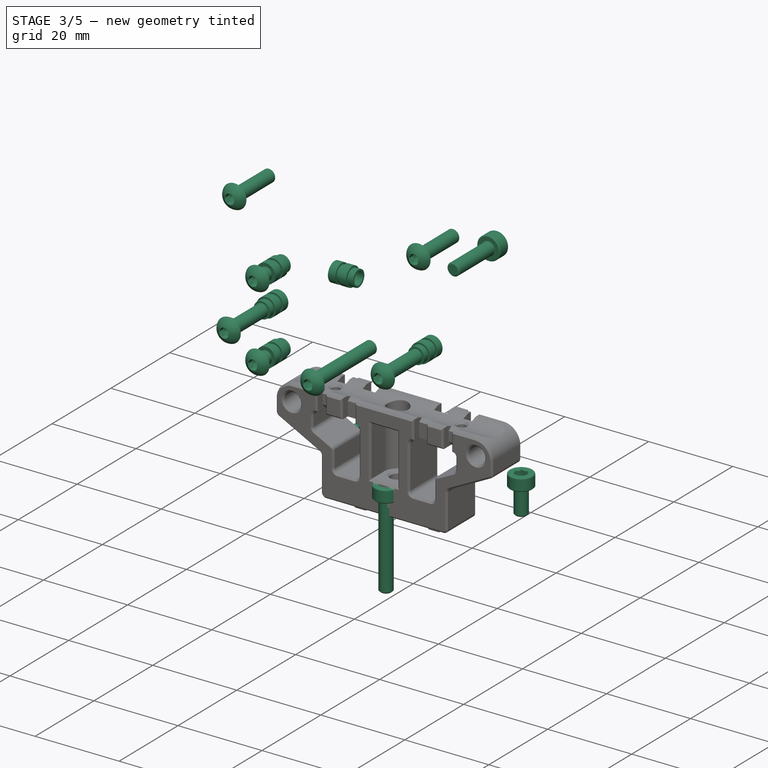
[diagram: stage 3 of 5 — iso view after this stage's code; geometry added in this stage tinted green]
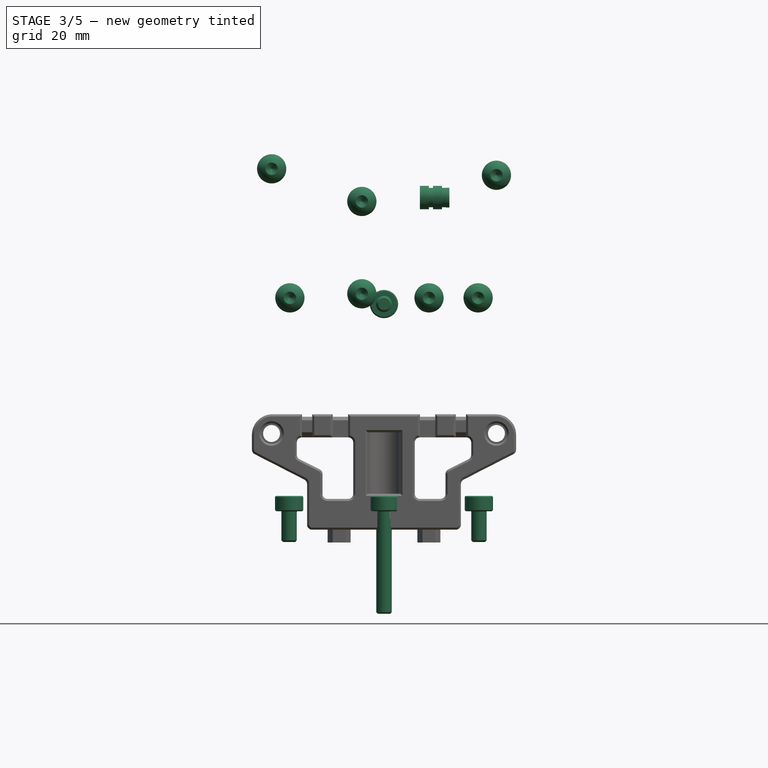
[diagram: stage 3 of 5 — front view after this stage's code; geometry added in this stage tinted green]
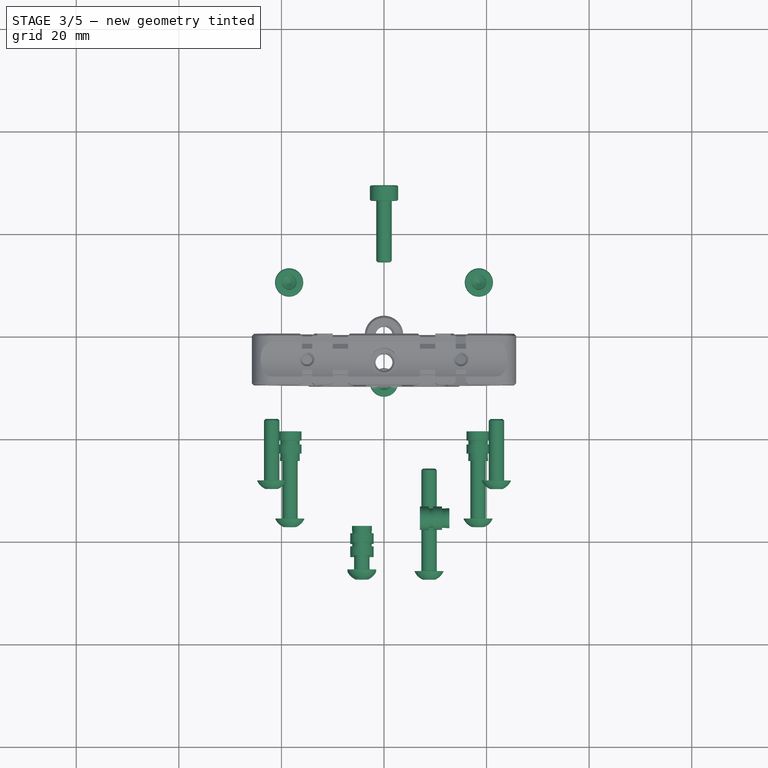
[diagram: stage 3 of 5 — top view after this stage's code; geometry added in this stage tinted green]
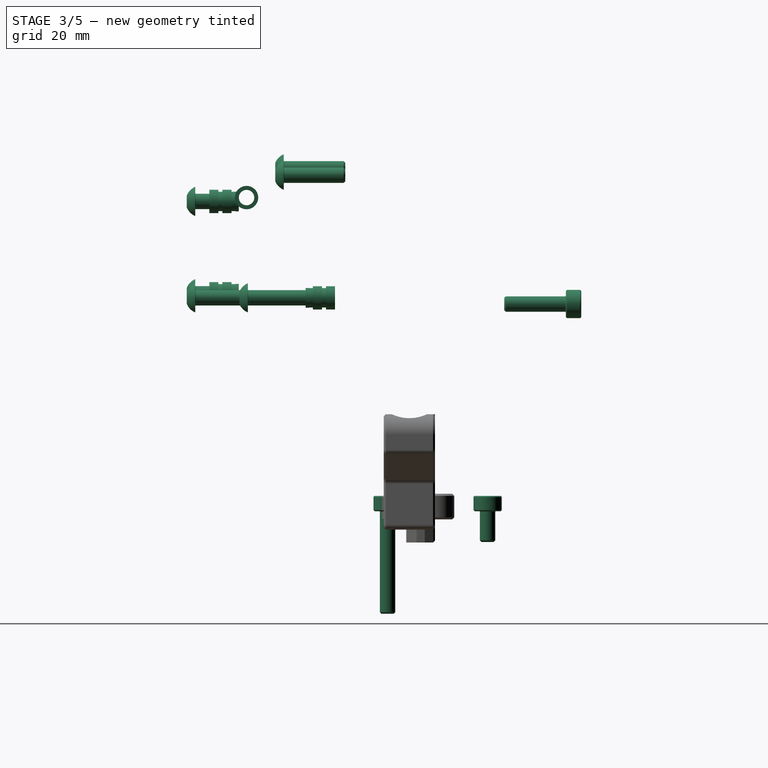
[diagram: stage 3 of 5 — right view after this stage's code; geometry added in this stage tinted green]
FEATURE [Part::Feature] Part__Feature112001168  label="SOLID004"
  shape: bbox 12.4 x 5.75 x 10.4 mm, 141 faces (baked)
FEATURE [App::Part] JST_XH_B04B_XH_A_1x04_P2_50mm_Vertical  label="JST_XH_B04B-XH-A_1x04_P2.50mm_Vertical"
  Group = -> [Part__Feature112001168]
  Origin = -> Origin216
  Placement = pos=(-8.5,-2.75,1.65) rot=(0,0,1;3.14159rad)
FEATURE [Part::Feature] Part__Feature112001167  label="SOLID003"
  shape: bbox 9.9 x 5.75 x 10.4 mm, 117 faces (baked)
FEATURE [Part::FeaturePython] Screw  label="M3x12-Screw076"  # Fasteners workbench fastener (typed FeaturePython)
  Placement = pos=(0,25.5,42) rot=(-1,0,0;1.5708rad)
  diameter = 4
  invert = true
  leftHanded = false
  length = 4
  lengthCustom = 12
  matchOuter = true
  offset = 0
  thread = false
  type = 34
FEATURE [Part::Feature] Part__Feature112001170  label="SOLID006"
  shape: bbox 2 x 1.25 x 1.25 mm, 28 faces (baked)
FEATURE [App::Part] C_0805_2012Metric
  Group = -> [Part__Feature112001170]
  Origin = -> Origin218
  Placement = pos=(-20.5,-3.225,1.65) rot=(0,0,1;1.5708rad)
FEATURE [Part::Feature] Part__Feature112001169  label="SOLID005"
  shape: bbox 14.9 x 5.75 x 10.4 mm, 165 faces (baked)
FEATURE [App::Part] JST_XH_B05B_XH_A_1x05_P2_50mm_Vertical  label="JST_XH_B05B-XH-A_1x05_P2.50mm_Vertical"
  Group = -> [Part__Feature112001169]
  Origin = -> Origin217
  Placement = pos=(-9,-10.75,1.65) rot=(0,0,1;3.14159rad)
FEATURE [App::Part] JST_XH_B03B_XH_A_1x03_P2_50mm_Vertical001  label="JST_XH_B03B-XH-A_1x03_P2.50mm_Vertical001"
  Group = -> [Part__Feature112001167]
  Origin = -> Origin215
  Placement = pos=(4,-2.75,1.65) rot=(0,0,1;3.14159rad)
FEATURE [Part::Feature] Part__Feature112001166  label="SOLID002"
  shape: bbox 7.4 x 5.75 x 10.4 mm, 89 faces (baked)
FEATURE [App::Part] JST_XH_B02B_XH_A_1x02_P2_50mm_Vertical001  label="JST_XH_B02B-XH-A_1x02_P2.50mm_Vertical001"
  Group = -> [Part__Feature112001166]
  Origin = -> Origin214
  Placement = pos=(9.5,-10.75,1.65) rot=(0,0,1;3.14159rad)
FEATURE [Part::Feature] Part__Feature112001171  label="COMPOUND002"
  shape: bbox 45 x 28.5 x 1.6 mm, 50 faces (baked)
FEATURE [Part::Feature] Part__Feature112001163  label="SOLID"
  shape: bbox 9.9 x 5.75 x 10.4 mm, 117 faces (baked)
FEATURE [Part::Feature] Part__Feature112001165  label="SOLID001"
  shape: bbox 7.4 x 5.75 x 10.4 mm, 89 faces (baked)
FEATURE [App::Part] JST_XH_B02B_XH_A_1x02_P2_50mm_Vertical  label="JST_XH_B02B-XH-A_1x02_P2.50mm_Vertical"
  Group = -> [Part__Feature112001165]
  Origin = -> Origin213
  Placement = pos=(19,-10.75,1.65) rot=(0,0,1;3.14159rad)
FEATURE [Part::Feature] Part__Feature112001164  label="COMPOUND"
  shape: bbox 28.15 x 8.8 x 13.09 mm, 388 faces (baked)
FEATURE [App::Part] COMPOUND  label="COMPOUND001"
  Group = -> [Part__Feature112001164]
  Origin = -> Origin211
FEATURE [App::Part] microfit_16  label="microfit-16"
  Group = -> [COMPOUND]
  Origin = -> Origin212
  Placement = pos=(-6e-06,6.81,6.65) rot=(0,0,1;0rad)
FEATURE [App::Part] JST_XH_B03B_XH_A_1x03_P2_50mm_Vertical  label="JST_XH_B03B-XH-A_1x03_P2.50mm_Vertical"
  Group = -> [Part__Feature112001163]
  Origin = -> Origin210
  Placement = pos=(16.5,-2.75,1.65) rot=(0,0,1;3.14159rad)
FEATURE [Part::FeaturePython] Screw001  label="M3x6-Screw001"  # Fasteners workbench fastener (typed FeaturePython)
  Placement = pos=(18.5,10.25,1.6) rot=(0,0,1;0rad)
  baseObject = -> Part__Feature112001171 [Edge78]
  diameter = 4
  invert = false
  leftHanded = false
  length = 1
  lengthCustom = 6
  matchOuter = true
  offset = 0
  thread = false
  type = 34
FEATURE [Part::FeaturePython] Screw002  label="M3x6-Screw"  # Fasteners workbench fastener (typed FeaturePython)
  Placement = pos=(-18.5,10.25,1.6) rot=(0,0,1;0rad)
  baseObject = -> Part__Feature112001171 [Edge81]
  diameter = 4
  invert = false
  leftHanded = false
  length = 1
  lengthCustom = 6
  matchOuter = true
  offset = 0
  thread = false
  type = 34
FEATURE [Part::FeaturePython] Screw003  label="M3x20-Screw025"  # Fasteners workbench fastener (typed FeaturePython)
  Placement = pos=(0,-9.25,1.6) rot=(0,0,1;0rad)
  baseObject = -> Part__Feature112001171 [Edge92]
  diameter = 4
  invert = false
  leftHanded = false
  length = 7
  lengthCustom = 20
  matchOuter = true
  offset = 0
  thread = false
  type = 34
FEATURE [App::Part] Open_CASCADE_STEP_translator_6_9_1  label="PCB-rev1"
  Group = -> [JST_XH_B03B_XH_A_1x03_P2_50mm_Vertical,microfit_16,JST_XH_B02B_XH_A_1x02_P2_50mm_Vertical,JST_XH_B02B_XH_A_1x02_P2_50mm_Vertical001,JST_XH_B03B_XH_A_1x03_P2_50mm_Vertical001,JST_XH_B04B_XH_A_1x04_P2_50mm_Vertical,JST_XH_B05B_XH_A_1x05_P2_50mm_Vertical,C_0805_2012Metric,Part__Feature112001171,Screw002,Screw001,Screw003]
  Origin = -> Origin219
  Placement = pos=(0,16.8,56) rot=(0,0,1;0rad)
FEATURE [Part::Feature] Chamfer001002006005073001  label="pcb-mounter-cable-guide"
  Placement = pos=(0,29.5,32) rot=(1,0,0;1.5708rad)
  shape: bbox 52.5 x 23 x 29 mm, 192 faces (baked)
FEATURE [Part::Feature] Tube001  label="pcb_spacer"
  Placement = pos=(0,7,46) rot=(0,0,1;0rad)
  shape: bbox 7 x 7 x 10 mm, 4 faces (baked)
FEATURE [App::Part] Part  label="toolhead-pcb"
  Group = -> [Open_CASCADE_STEP_translator_6_9_1,Screw,Chamfer001002006005073001,Tube001]
  Origin = -> Origin
FEATURE [Part::Feature] Body001002003  label="top-plate-with-endstop"
  Placement = pos=(0,0,0) rot=(0,0,1;3.14159rad)
  shape: bbox 50.05 x 27 x 15.5 mm, 155 faces (baked)
FEATURE [Part::Feature] Chamfer005021077002006007019003032019001  label="extruder-back-plate"
  Placement = pos=(1e-15,10,10) rot=(0,0.707107,0.707107;3.14159rad)
  shape: bbox 51.76 x 37.05 x 72.2 mm, 540 faces (baked)
FEATURE [Part::Feature] Chamfer008008001001  label="extruder-front-plate"
  Placement = pos=(0,-13,10) rot=(1,0,0;1.5708rad)
  shape: bbox 48 x 8 x 57 mm, 200 faces (baked)
FEATURE [Part::Feature] Body001  label="extruderbottom-plate"
  Placement = pos=(0,17.64,-29.79) rot=(1,0,0;1.5708rad)
  shape: bbox 44.1 x 27 x 22.2 mm, 73 faces (baked)
FEATURE [App::Part] Part197  label="toolhead-sherp-pcb-1515"
  Group = -> [Part__Feature112001136,BL_Touch__1_001,Nut058,Nut005,Nut004,Screw1355,Screw1356,Nut057,Screw1360,Screw1359,Screw1368,Screw018,Screw020,Screw019,Screw017,Screw1381,Screw1380,Chamfer008009001,Chamfer005021077002006007019003032007003,Fusion006002011004053036004001028003005014029,Body001001001,Screw1383,Screw1382,LCS_toolhead_1515,HeatSet016,HeatSet004,HeatSet014,HeatSet015,HeatSet017,Nut,Nut059,+11 more]
  Origin = -> Origin205
  Placement = pos=(0,31.5,-33) rot=(0,0,1;0rad)
FEATURE [Part::Feature] Part__Feature031  label="needle_bearing^idler_gear_assy_sherpa_mini_a3_r9c012"
  Placement = pos=(0,0,3.15) rot=(0,0,1;0.1848rad)
  shape: bbox 1 x 1 x 4.25 mm, 8 faces (baked)
FEATURE [Part::Feature] Part__Feature112001146  label="shaft^idler_gear_assy_sherpa_mini_a3_r9c"
  shape: bbox 3 x 3 x 20 mm, 8 faces (baked)
FEATURE [Part::Feature] Part__Feature009  label="MR85-2RS^drive_core_sherpa_mini_a3_r9c006"
  Placement = pos=(0,0,-12.05) rot=(0,0,1;0rad)
  shape: bbox 7.4 x 7.4 x 2.3 mm, 6 faces (baked)
FEATURE [Part::Feature] Part__Feature112001147  label="needle_bearing^idler_gear_assy_sherpa_mini_a3_r9c005"
  Placement = pos=(0,0,-4.35) rot=(0,0,1;0.1848rad)
  shape: bbox 1 x 1 x 4.25 mm, 8 faces (baked)
FEATURE [Part::Feature] Part__Feature112001148  label="MR85-2RS^drive_core_sherpa_mini_a3_r9c"
  Placement = pos=(0,0,12.05) rot=(0,0,1;0rad)
  shape: bbox 8 x 8 x 2.5 mm, 12 faces (baked)
FEATURE [Part::Feature] Part__Feature112001149  label="needle_bearing^idler_gear_assy_sherpa_mini_a3_r9c007"
  Placement = pos=(0,0,-4.35) rot=(0,0,1;0.1848rad)
  shape: bbox 1 x 1 x 4.25 mm, 8 faces (baked)
FEATURE [Part::Feature] Part__Feature007  label="MR85-2RS^drive_core_sherpa_mini_a3_r9c004"
  Placement = pos=(0,0,-12.05) rot=(0,0,1;0rad)
  shape: bbox 8 x 8 x 2.5 mm, 12 faces (baked)
FEATURE [Part::Feature] Part__Feature112001150  label="needle_bearing^idler_gear_assy_sherpa_mini_a3_r9c006"
  Placement = pos=(0,0,-4.35) rot=(0,0,1;0.1848rad)
  shape: bbox 1 x 1 x 4.25 mm, 8 faces (baked)
FEATURE [Part::Feature] Part__Feature112001172  label="shaft^drive_core_sherpa_mini_a3_r9c"
  shape: bbox 5 x 5 x 26.6 mm, 23 faces (baked)
FEATURE [Part::Feature] Part__Feature112001151  label="idler_gear^idler_gear_assy_sherpa_mini_a3_r9c"
  Placement = pos=(0,0,2.4) rot=(0,0,1;0.1848rad)
  shape: bbox 24.52 x 24.41 x 14.5 mm, 457 faces (baked)
FEATURE [Part::Feature] Part__Feature112001152  label="m3_set_screw^drive_core_sherpa_mini_a3_r9c"
  Placement = pos=(0,2,3.3) rot=(0,0,1;0rad)
  shape: bbox 3.112 x 2.509 x 3.465 mm, 55 faces (baked)
FEATURE [Part::Feature] Part__Feature112001153  label="MR85-2RS^drive_core_sherpa_mini_a3_r9c001"
  Placement = pos=(0,0,12.05) rot=(0,0,1;0rad)
  shape: bbox 5.6 x 5.6 x 2.5 mm, 14 faces (baked)
FEATURE [Part::Feature] Part__Feature035  label="needle_bearing^idler_gear_assy_sherpa_mini_a3_r9c016"
  Placement = pos=(0,0,3.15) rot=(0,0,1;0.1848rad)
  shape: bbox 1 x 1 x 4.25 mm, 8 faces (baked)
FEATURE [Part::Feature] Part__Feature032  label="needle_bearing^idler_gear_assy_sherpa_mini_a3_r9c013"
  Placement = pos=(0,0,3.15) rot=(0,0,1;0.1848rad)
  shape: bbox 1 x 1 x 4.25 mm, 8 faces (baked)
FEATURE [Part::Feature] Part__Feature112001154  label="needle_bearing^idler_gear_assy_sherpa_mini_a3_r9c009"
  Placement = pos=(0,0,3.15) rot=(0,0,1;0.1848rad)
  shape: bbox 1 x 1 x 4.25 mm, 8 faces (baked)
FEATURE [Part::Feature] Part__Feature112001173  label="filament_gear^drive_core_sherpa_mini_a3_r9c"
  Placement = pos=(0,0,6.3) rot=(0,0,1;0rad)
  shape: bbox 24.52 x 24.23 x 14.5 mm, 464 faces (baked)
FEATURE [Part::Feature] Part__Feature002  label="sherpa_mini_gear_50t_sl_7mm^drive_core_sherpa_mini_a3_r9c"
  Placement = pos=(0,0,-10.7) rot=(0,0,1;3.14159rad)
  shape: bbox 34.81 x 38.99 x 7.033 mm, 520 faces (baked)
FEATURE [Part::Feature] Part__Feature112001155  label="needle_bearing^idler_gear_assy_sherpa_mini_a3_r9c003"
  Placement = pos=(0,0,-4.35) rot=(0,0,1;0.1848rad)
  shape: bbox 1 x 1 x 4.25 mm, 8 faces (baked)
FEATURE [Part::Feature] Part__Feature112001156  label="needle_bearing^idler_gear_assy_sherpa_mini_a3_r9c011"
  Placement = pos=(0,0,3.15) rot=(0,0,1;0.1848rad)
  shape: bbox 1 x 1 x 4.25 mm, 8 faces (baked)
FEATURE [Part::Feature] Part__Feature008  label="MR85-2RS^drive_core_sherpa_mini_a3_r9c005"
  Placement = pos=(0,0,-12.05) rot=(0,0,1;0rad)
  shape: bbox 5.6 x 5.6 x 2.5 mm, 14 faces (baked)
FEATURE [App::Part] MR85_2RS_drive_core_sherpa_mini_a3_r9c001  label="MR85-2RS^drive_core_sherpa_mini_a3_r9c007"
  Group = -> [Part__Feature007,Part__Feature008,Part__Feature009]
  Origin = -> Origin001
FEATURE [Part::Feature] Part__Feature006  label="MR85-2RS^drive_core_sherpa_mini_a3_r9c002"
  Placement = pos=(0,0,12.05) rot=(0,0,1;0rad)
  shape: bbox 7.4 x 7.4 x 2.3 mm, 6 faces (baked)
FEATURE [App::Part] MR85_2RS_drive_core_sherpa_mini_a3_r9c  label="MR85-2RS^drive_core_sherpa_mini_a3_r9c003"
  Group = -> [Part__Feature112001148,Part__Feature112001153,Part__Feature006]
  Origin = -> Origin208
FEATURE [Part::Feature] Part__Feature112001157  label="needle_bearing^idler_gear_assy_sherpa_mini_a3_r9c010"
  Placement = pos=(0,0,3.15) rot=(0,0,1;0.1848rad)
  shape: bbox 4.8 x 4.8 x 6.5 mm, 82 faces (baked)
FEATURE [Part::Feature] Part__Feature112001158  label="needle_bearing^idler_gear_assy_sherpa_mini_a3_r9c002"
  Placement = pos=(0,0,-4.35) rot=(0,0,1;0.1848rad)
  shape: bbox 1 x 1 x 4.25 mm, 8 faces (baked)
FEATURE [Part::Feature] Part__Feature112001159  label="needle_bearing^idler_gear_assy_sherpa_mini_a3_r9c004"
  Placement = pos=(0,0,-4.35) rot=(0,0,1;0.1848rad)
  shape: bbox 1 x 1 x 4.25 mm, 8 faces (baked)
FEATURE [Part::Feature] Part__Feature034  label="needle_bearing^idler_gear_assy_sherpa_mini_a3_r9c015"
  Placement = pos=(0,0,3.15) rot=(0,0,1;0.1848rad)
  shape: bbox 1 x 1 x 4.25 mm, 8 faces (baked)
FEATURE [Part::Feature] Part__Feature033  label="needle_bearing^idler_gear_assy_sherpa_mini_a3_r9c014"
  Placement = pos=(0,0,3.15) rot=(0,0,1;0.1848rad)
  shape: bbox 1 x 1 x 4.25 mm, 8 faces (baked)
FEATURE [App::Part] needle_bearing_idler_gear_assy_sherpa_mini_a3_r9c001  label="needle_bearing^idler_gear_assy_sherpa_mini_a3_r9c017"
  Group = -> [Part__Feature112001154,Part__Feature112001157,Part__Feature112001156,Part__Feature031,Part__Feature032,Part__Feature033,Part__Feature034,Part__Feature035]
  Origin = -> Origin005
FEATURE [Part::FeaturePython] Screw1392  label="M3x20-Screw026"  # Fasteners workbench fastener (typed FeaturePython)
  Placement = pos=(8.78,-46.75,43.2) rot=(1,0,0;1.5708rad)
  baseObject = -> Part__Feature112001006 [Edge69]
  diameter = 1
  invert = true
  leftHanded = false
  length = 6
  lengthCustom = 20
  matchOuter = true
  offset = 0
  thread = false
  type = 40
FEATURE [PartDesign::CoordinateSystem] LCS_sherpa_mini  label="LCS_sherpa-mini"
  AttacherType = Attacher::AttachEngine3D
FEATURE [Part::Feature] Cut001001001  label="E3D-bowden-collet"
  Placement = pos=(-9e-15,-32.5,72) rot=(0,1,0;3.14159rad)
  shape: bbox 6 x 6 x 3.5 mm, 32 faces (baked)
FEATURE [Part::FeaturePython] HeatSet025  label="M3x5x4-HeatSet"  # Fasteners workbench fastener (typed FeaturePython)
  Placement = pos=(18.35,-19.5,43.2) rot=(-1,0,0;1.5708rad)
  baseObject = -> Part__Feature112001005 [Edge735]
  diameter = 2
  invert = true
  leftHanded = false
  matchOuter = false
  offset = 0
  thread = false
  type = 14
FEATURE [Part::FeaturePython] HeatSet026  label="M3x5x4-HeatSet001"  # Fasteners workbench fastener (typed FeaturePython)
  Placement = pos=(-18.35,-19.5,43.2) rot=(-1,0,0;1.5708rad)
  baseObject = -> Part__Feature112001005 [Edge736]
  diameter = 2
  invert = true
  leftHanded = false
  matchOuter = false
  offset = 0
  thread = false
  type = 14
FEATURE [Part::FeaturePython] HeatSet027  label="M3x5x4-HeatSet002"  # Fasteners workbench fastener (typed FeaturePython)
  Placement = pos=(7,-36.75,62.75) rot=(0,-1,0;1.5708rad)
  baseObject = -> Chamfer005021077002002 [Edge997]
  diameter = 2
  invert = false
  leftHanded = false
  matchOuter = false
  offset = 0
  thread = false
  type = 14
FEATURE [Part::FeaturePython] HeatSet028  label="M3x5x4-HeatSet003"  # Fasteners workbench fastener (typed FeaturePython)
  Placement = pos=(-4.3,-44,62) rot=(1,0,0;1.5708rad)
  baseObject = -> Chamfer005021077002002 [Edge284]
  diameter = 2
  invert = true
  leftHanded = false
  matchOuter = false
  offset = 0
  thread = false
  type = 14
FEATURE [Part::FeaturePython] HeatSet029  label="M3x5x4-HeatSet004"  # Fasteners workbench fastener (typed FeaturePython)
  Placement = pos=(-4.3,-44,44) rot=(1,0,0;1.5708rad)
  baseObject = -> Chamfer005021077002002 [Edge285]
  diameter = 2
  invert = true
  leftHanded = false
  matchOuter = false
  offset = 0
  thread = false
  type = 14
FEATURE [Part::FeaturePython] Screw1393  label="M3x8-Screw135"  # Fasteners workbench fastener (typed FeaturePython)
  Placement = pos=(-4.32,-46.75,44) rot=(1,0,0;1.5708rad)
  baseObject = -> Part__Feature112001006 [Edge74]
  diameter = 1
  invert = true
  leftHanded = false
  length = 1
  lengthCustom = 8
  matchOuter = true
  offset = 0
  thread = false
  type = 40
FEATURE [Part::FeaturePython] Screw1386  label="M3x8-Screw134"  # Fasteners workbench fastener (typed FeaturePython)
  Placement = pos=(-4.32,-46.75,62) rot=(1,0,0;1.5708rad)
  baseObject = -> Part__Feature112001006 [Edge130]
  diameter = 1
  invert = true
  leftHanded = false
  length = 1
  lengthCustom = 8
  matchOuter = true
  offset = 0
  thread = false
  type = 40
FEATURE [Part::FeaturePython] Screw1394  label="M3x16-Screw"  # Fasteners workbench fastener (typed FeaturePython)
  Placement = pos=(-18.35,-36.5,43.2) rot=(1,0,0;1.5708rad)
  baseObject = -> Chamfer005021077002002 [Edge1178]
  diameter = 1
  invert = true
  leftHanded = false
  length = 5
  lengthCustom = 16
  matchOuter = true
  offset = 0
  thread = false
  type = 40
FEATURE [Part::FeaturePython] Screw1395  label="M3x16-Screw001"  # Fasteners workbench fastener (typed FeaturePython)
  Placement = pos=(18.35,-36.5,43.2) rot=(1,0,0;1.5708rad)
  baseObject = -> Chamfer005021077002002 [Edge1135]
  diameter = 1
  invert = true
  leftHanded = false
  length = 5
  lengthCustom = 16
  matchOuter = true
  offset = 0
  thread = false
  type = 40
FEATURE [Part::FeaturePython] Screw1396  label="M3x12-Screw069"  # Fasteners workbench fastener (typed FeaturePython)
  Placement = pos=(-21.9025,-29.5,68.3593) rot=(1,0,0;1.5708rad)
  baseObject = -> Chamfer005021077002002 [Edge558]
  diameter = 1
  invert = true
  leftHanded = false
  length = 3
  lengthCustom = 12
  matchOuter = true
  offset = 0
  thread = false
  type = 40
FEATURE [Part::FeaturePython] Screw1397  label="M3x12-Screw068"  # Fasteners workbench fastener (typed FeaturePython)
  Placement = pos=(21.9203,-29.5,67.1093) rot=(1,0,0;1.5708rad)
  baseObject = -> Chamfer005021077002002 [Edge329]
  diameter = 1
  invert = true
  leftHanded = false
  length = 3
  lengthCustom = 12
  matchOuter = true
  offset = 0
  thread = false
  type = 40
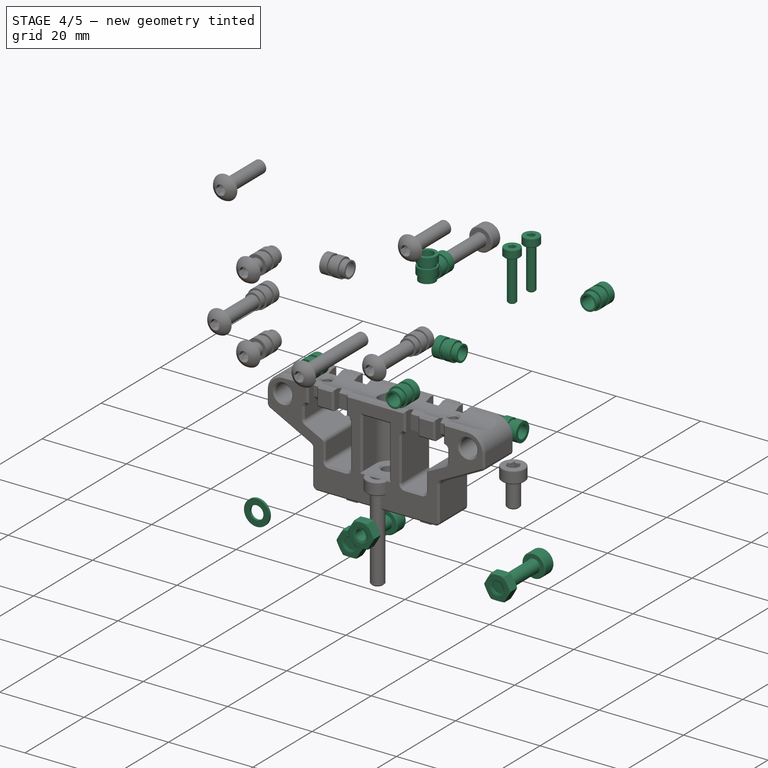
[diagram: stage 4 of 5 — iso view after this stage's code; geometry added in this stage tinted green]
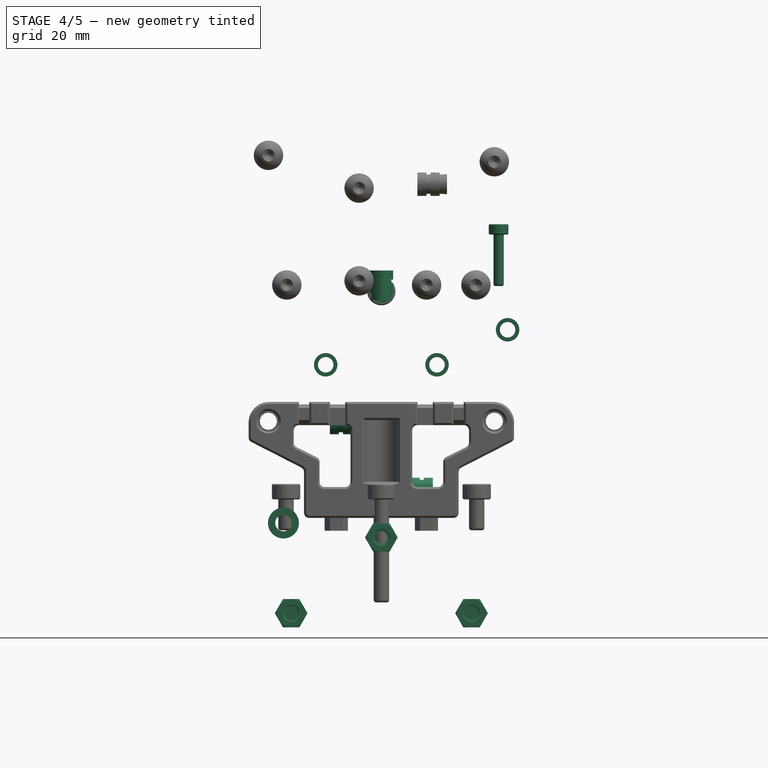
[diagram: stage 4 of 5 — front view after this stage's code; geometry added in this stage tinted green]
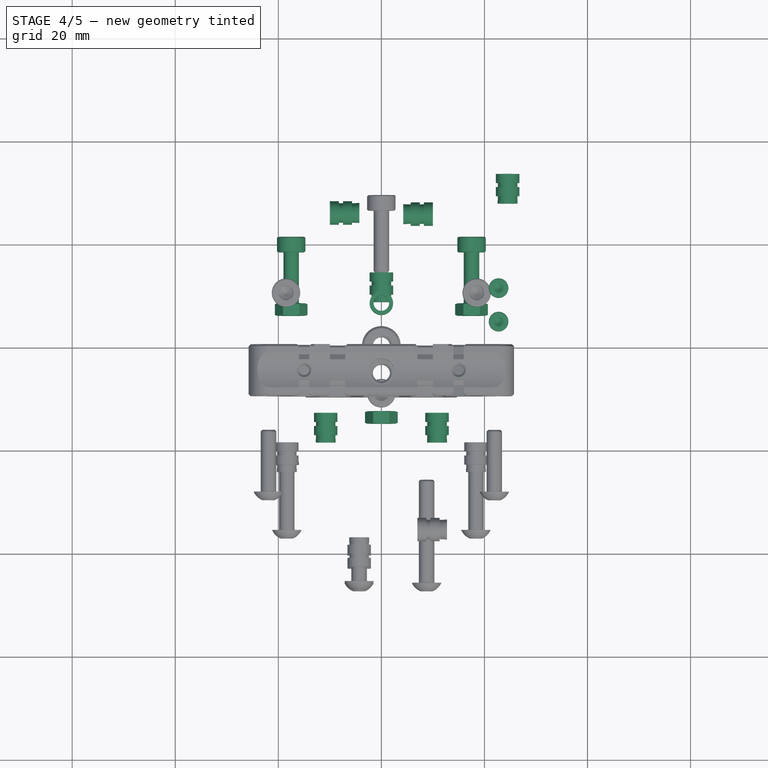
[diagram: stage 4 of 5 — top view after this stage's code; geometry added in this stage tinted green]
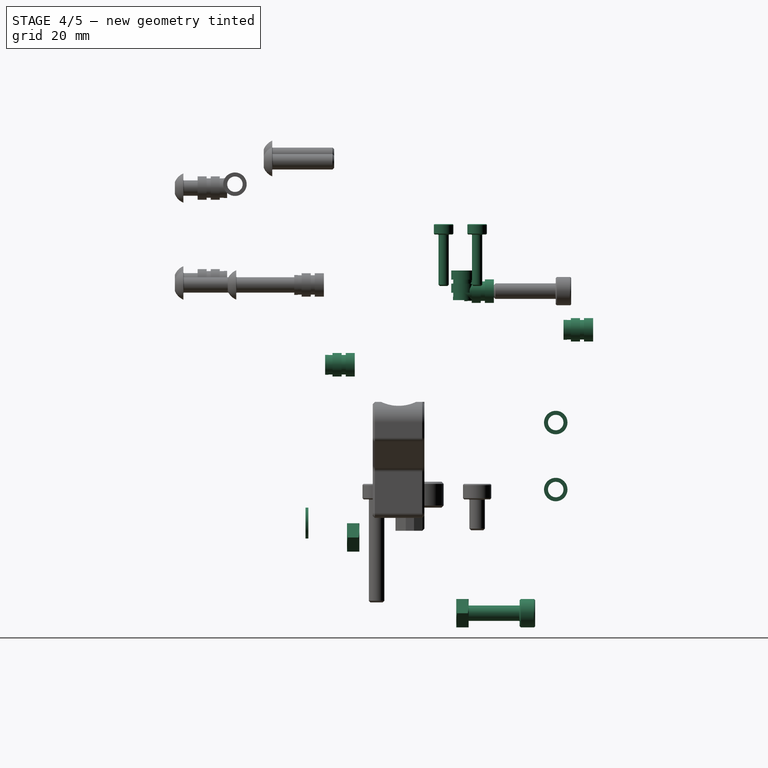
[diagram: stage 4 of 5 — right view after this stage's code; geometry added in this stage tinted green]
FEATURE [Part::Feature] Chamfer008009001  label="extruder-belt-tesioner"
  Placement = pos=(6,15,7.5) rot=(0,1,0;3.14159rad)
  shape: bbox 20 x 14.4 x 10 mm, 116 faces (baked)
FEATURE [Part::Feature] Chamfer005021077002006007019003032007003  label="extruder-belt-tesioner001"
  Placement = pos=(-6,15,12.5) rot=(0,0,1;0rad)
  shape: bbox 20 x 14.4 x 10 mm, 116 faces (baked)
FEATURE [Part::Feature] Fusion006002011004053036004001028003005014029  label="endstop-switch"
  Placement = pos=(28,7,46) rot=(0,0,1;1.5708rad)
  shape: bbox 12.18 x 13 x 6 mm, 43 faces (baked)
FEATURE [Part::Feature] Body001001001  label="endstop-cap"
  Placement = pos=(16,7,54) rot=(1,0,0;3.14159rad)
  shape: bbox 12 x 13 x 7.75 mm, 19 faces (baked)
FEATURE [Part::FeaturePython] Screw1382  label="M2x10-Screw001"  # Fasteners workbench fastener (typed FeaturePython)
  Placement = pos=(22.75,3.75,53) rot=(0,0,1;0rad)
  baseObject = -> Body001001001 [Edge27]
  diameter = 2
  invert = false
  leftHanded = false
  length = 5
  lengthCustom = 10
  matchOuter = true
  offset = 0
  thread = false
  type = 33
FEATURE [Part::FeaturePython] Screw1383  label="M2x10-Screw"  # Fasteners workbench fastener (typed FeaturePython)
  Placement = pos=(22.75,10.25,53) rot=(0,0,1;0rad)
  baseObject = -> Body001001001 [Edge25]
  diameter = 2
  invert = false
  leftHanded = false
  length = 5
  lengthCustom = 10
  matchOuter = true
  offset = 0
  thread = false
  type = 33
FEATURE [PartDesign::CoordinateSystem] LCS_toolhead_1515  label="LCS_toolhead-1515"
  AttacherType = Attacher::AttachEngine3D
FEATURE [Part::FeaturePython] HeatSet004  label="M3x4-HeatSet009"  # Fasteners workbench fastener (typed FeaturePython)
  Placement = pos=(1e-14,7.5,46) rot=(0,0,1;0rad)
  diameter = 2
  invert = true
  leftHanded = false
  matchOuter = false
  offset = 0
  thread = false
  type = 14
FEATURE [Part::FeaturePython] HeatSet014  label="M3x4-HeatSet010"  # Fasteners workbench fastener (typed FeaturePython)
  Placement = pos=(10.8,-13.5,27.705) rot=(-1,0,0;1.5708rad)
  diameter = 2
  invert = true
  leftHanded = false
  matchOuter = false
  offset = 0
  thread = false
  type = 14
FEATURE [Part::FeaturePython] HeatSet015  label="M3x4-HeatSet012"  # Fasteners workbench fastener (typed FeaturePython)
  Placement = pos=(-10.8,-13.5,27.71) rot=(-1,0,0;1.5708rad)
  diameter = 2
  invert = true
  leftHanded = false
  matchOuter = false
  offset = 0
  thread = false
  type = 14
FEATURE [Part::FeaturePython] HeatSet016  label="M3x4-HeatSet004"  # Fasteners workbench fastener (typed FeaturePython)
  Placement = pos=(10,25.5,3.5) rot=(0,1,0;1.5708rad)
  baseObject = -> Chamfer008009001 [Edge5]
  diameter = 2
  invert = false
  leftHanded = false
  matchOuter = false
  offset = 0
  thread = false
  type = 14
FEATURE [Part::FeaturePython] HeatSet017  label="M3x4-HeatSet013"  # Fasteners workbench fastener (typed FeaturePython)
  Placement = pos=(-10,25.5,16.5) rot=(0,-1,0;1.5708rad)
  baseObject = -> Chamfer005021077002006007019003032007003 [Edge5]
  diameter = 2
  invert = false
  leftHanded = false
  matchOuter = false
  offset = 0
  thread = false
  type = 14
FEATURE [Part::FeaturePython] Nut  label="M3-Nut"  # Fasteners workbench fastener (typed FeaturePython)
  Placement = pos=(0,-15,-5.8) rot=(-1,0,0;1.5708rad)
  diameter = 4
  invert = true
  leftHanded = false
  matchOuter = true
  offset = 0
  thread = false
  type = 7
FEATURE [Part::FeaturePython] Nut059  label="M3-Nut034"  # Fasteners workbench fastener (typed FeaturePython)
  Placement = pos=(-17.5,8.59783,-20.5) rot=(1,0,0;1.5708rad)
  diameter = 4
  invert = false
  leftHanded = false
  matchOuter = true
  offset = 0
  thread = false
  type = 7
FEATURE [Part::FeaturePython] Nut060  label="M3-Nut035"  # Fasteners workbench fastener (typed FeaturePython)
  Placement = pos=(17.5,8.59783,-20.5) rot=(1,0,0;1.5708rad)
  diameter = 4
  invert = true
  leftHanded = false
  matchOuter = true
  offset = 0
  thread = false
  type = 7
FEATURE [Part::FeaturePython] Screw1384  label="M3x12-Screw075"  # Fasteners workbench fastener (typed FeaturePython)
  Placement = pos=(17.5,18.5,-20.5) rot=(-1,0,0;1.5708rad)
  diameter = 4
  invert = false
  leftHanded = false
  length = 4
  lengthCustom = 12
  matchOuter = true
  offset = 0
  thread = false
  type = 34
FEATURE [Part::FeaturePython] Screw1385  label="M3x12-Screw074"  # Fasteners workbench fastener (typed FeaturePython)
  Placement = pos=(-17.5,18.5,-20.5) rot=(-1,0,0;1.5708rad)
  diameter = 4
  invert = true
  leftHanded = false
  length = 4
  lengthCustom = 12
  matchOuter = true
  offset = 0
  thread = false
  type = 34
FEATURE [Part::FeaturePython] HeatSet024  label="M3-HeatSet"  # Fasteners workbench fastener (typed FeaturePython)
  Placement = pos=(1.1e-14,13.5,42) rot=(-1,0,0;1.5708rad)
  diameter = 2
  invert = false
  leftHanded = false
  matchOuter = false
  offset = 0
  thread = false
  type = 14
FEATURE [Part::FeaturePython] HeatSet  label="M3x4-HeatSet019"  # Fasteners workbench fastener (typed FeaturePython)
  Placement = pos=(24.5,32.75,34.5) rot=(-1,0,0;1.5708rad)
  diameter = 2
  invert = false
  leftHanded = false
  matchOuter = false
  offset = 0
  thread = false
  type = 14
FEATURE [Part::FeaturePython] Washer001  label="M3-Washer006"  # Fasteners workbench fastener (typed FeaturePython)
  Placement = pos=(-19,-22.5,-3) rot=(1,0,0;1.5708rad)
  diameter = 4
  invert = false
  leftHanded = false
  matchOuter = true
  offset = 0
  type = 5
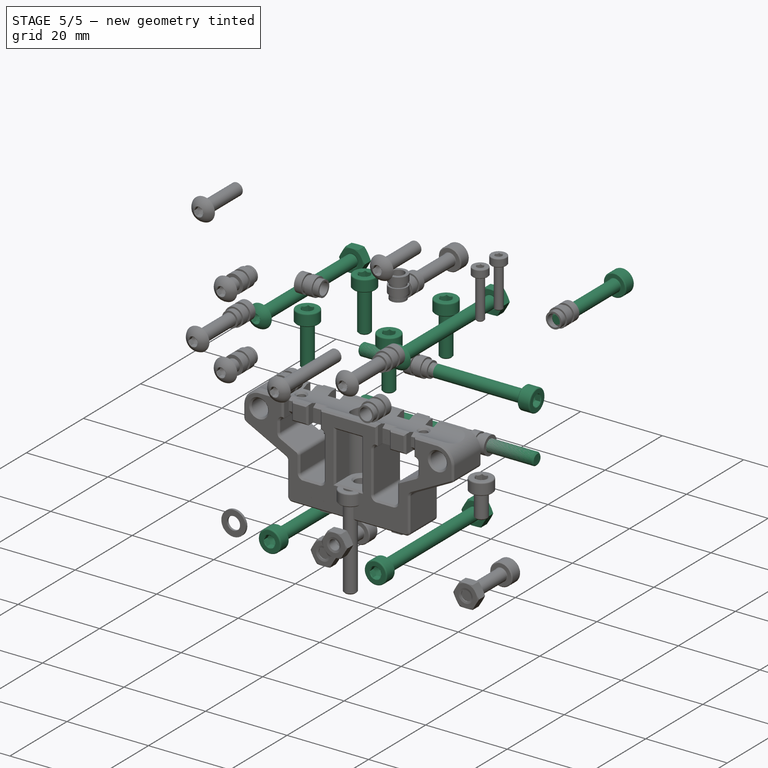
[diagram: stage 5 of 5 — iso view after this stage's code; geometry added in this stage tinted green]
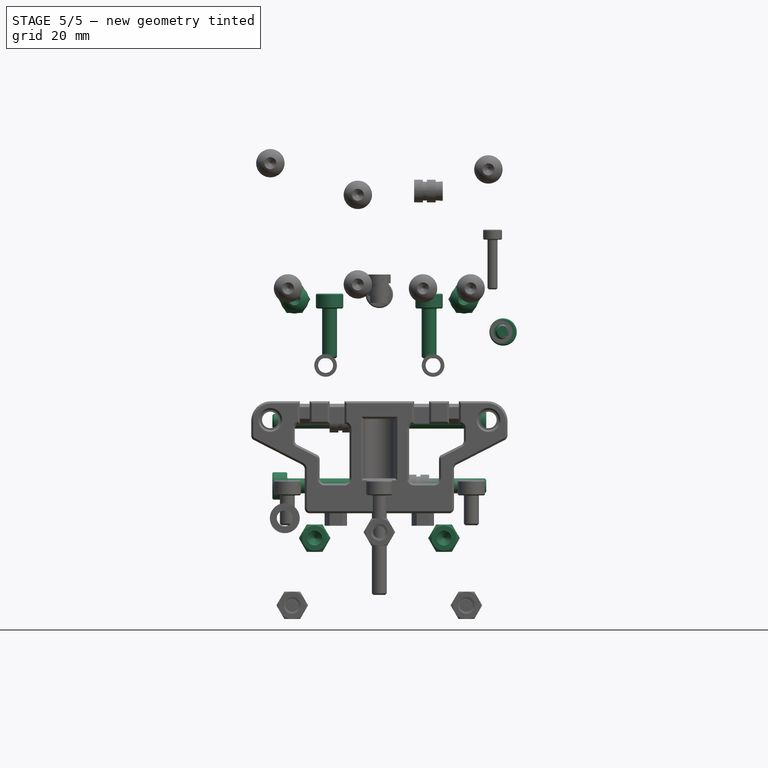
[diagram: stage 5 of 5 — front view after this stage's code; geometry added in this stage tinted green]
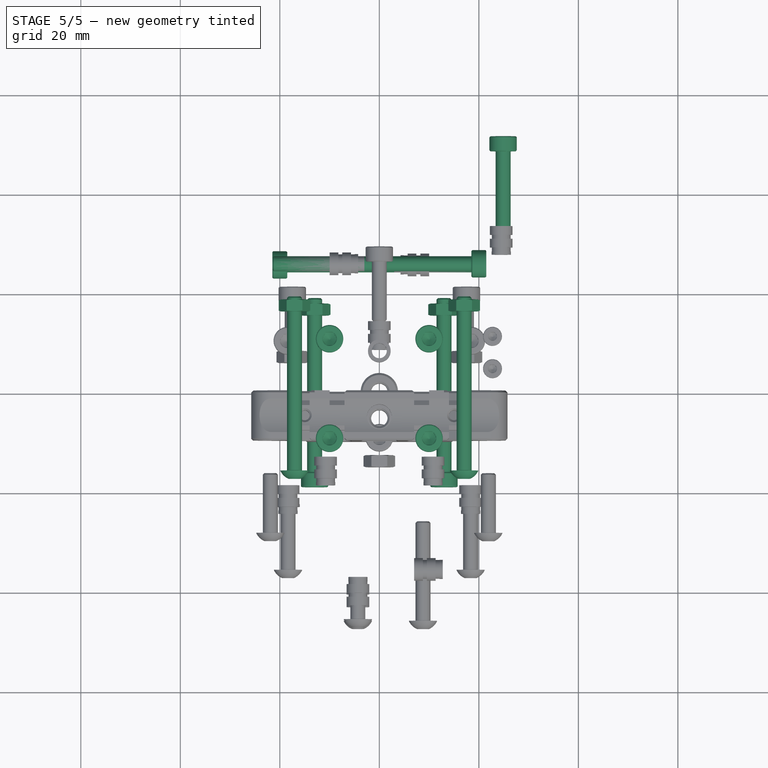
[diagram: stage 5 of 5 — top view after this stage's code; geometry added in this stage tinted green]
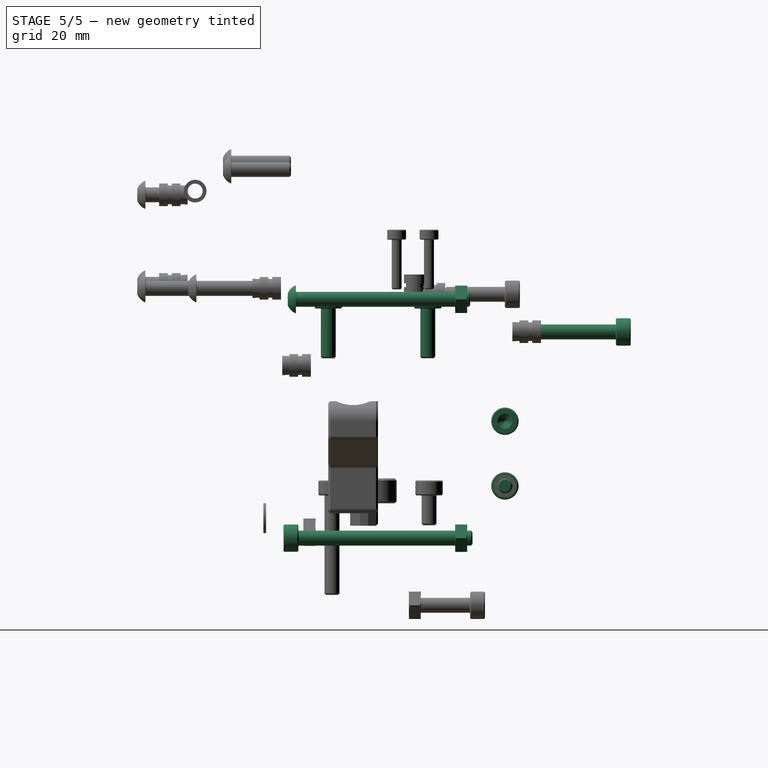
[diagram: stage 5 of 5 — right view after this stage's code; geometry added in this stage tinted green]
FEATURE [App::Part] BL_Touch__1_001  label="BL-Touch <1>001"
  Origin = -> Origin206
  Placement = pos=(70,8,28.5) rot=(0,0,1;0rad)
FEATURE [Part::FeaturePython] Nut057  label="M3-Nut026"  # Fasteners workbench fastener (typed FeaturePython)
  Placement = pos=(-17.05,15.5,41) rot=(-1,0,0;1.5708rad)
  diameter = 4
  invert = false
  leftHanded = false
  matchOuter = true
  offset = 0
  thread = false
  type = 7
FEATURE [Part::FeaturePython] Nut004  label="M3-Nut009"  # Fasteners workbench fastener (typed FeaturePython)
  Placement = pos=(13,15.5,-7) rot=(-1,0,0;1.5708rad)
  diameter = 4
  invert = false
  leftHanded = false
  matchOuter = true
  offset = 0
  thread = false
  type = 7
FEATURE [Part::FeaturePython] Nut005  label="M3-Nut030"  # Fasteners workbench fastener (typed FeaturePython)
  Placement = pos=(-13,15.5,-7) rot=(-1,0,0;1.5708rad)
  diameter = 4
  invert = false
  leftHanded = false
  matchOuter = true
  offset = 0
  thread = false
  type = 7
FEATURE [Part::FeaturePython] Screw1359  label="M3x35-Screw004"  # Fasteners workbench fastener (typed FeaturePython)
  Placement = pos=(-13.0042,-16,-6.99647) rot=(1,0,0;1.5708rad)
  diameter = 4
  invert = true
  leftHanded = false
  length = 10
  lengthCustom = 35
  matchOuter = true
  offset = 0
  thread = false
  type = 33
FEATURE [Part::FeaturePython] Screw1360  label="M3x35-Screw003"  # Fasteners workbench fastener (typed FeaturePython)
  Placement = pos=(12.9958,-16,-6.99647) rot=(1,0,0;1.5708rad)
  diameter = 4
  invert = true
  leftHanded = false
  length = 10
  lengthCustom = 35
  matchOuter = true
  offset = 0
  thread = false
  type = 33
FEATURE [Part::FeaturePython] Screw020  label="M3x10-Screw"  # Fasteners workbench fastener (typed FeaturePython)
  Placement = pos=(-10.0042,-9.99647,39.1513) rot=(0,0,1;0rad)
  diameter = 4
  invert = false
  leftHanded = false
  length = 10
  lengthCustom = 10
  matchOuter = true
  offset = 0
  thread = false
  type = 33
FEATURE [Part::FeaturePython] Nut058  label="M3-Nut027"  # Fasteners workbench fastener (typed FeaturePython)
  Placement = pos=(17.05,15.5,41) rot=(-1,0,0;1.5708rad)
  diameter = 4
  invert = false
  leftHanded = false
  matchOuter = true
  offset = 0
  thread = false
  type = 7
FEATURE [Part::FeaturePython] Screw1355  label="M3x40-Screw001"  # Fasteners workbench fastener (typed FeaturePython)
  Placement = pos=(-18.5,25.5,3.5) rot=(0,-1,0;1.5708rad)
  diameter = 4
  invert = false
  leftHanded = false
  length = 10
  lengthCustom = 40
  matchOuter = true
  offset = 0
  thread = false
  type = 33
FEATURE [Part::FeaturePython] Screw1356  label="M3x40-Screw"  # Fasteners workbench fastener (typed FeaturePython)
  Placement = pos=(18.5,25.5,16.5) rot=(0,1,0;1.5708rad)
  diameter = 4
  invert = false
  leftHanded = false
  length = 10
  lengthCustom = 40
  matchOuter = true
  offset = 0
  thread = false
  type = 33
FEATURE [Part::Feature] Part__Feature112001136  label="5015 fan"
  Placement = pos=(-4.23967,32.8,25.9455) rot=(0.15487,0.698575,0.698575;3.44889rad)
  shape: bbox 61.97 x 15 x 62.93 mm, 220 faces (baked)
FEATURE [Part::FeaturePython] Screw1368  label="M3x20-Screw"  # Fasteners workbench fastener (typed FeaturePython)
  Placement = pos=(24.8765,47.8,34.436) rot=(-1,0,0;1.5708rad)
  baseObject = -> Part__Feature112001136 [Edge8]
  diameter = 4
  invert = false
  leftHanded = false
  length = 7
  lengthCustom = 20
  matchOuter = true
  offset = 0
  thread = false
  type = 33
FEATURE [Part::FeaturePython] Screw017  label="M3x10-Screw188"  # Fasteners workbench fastener (typed FeaturePython)
  Placement = pos=(9.99577,10.0035,39.1513) rot=(0,0,1;0rad)
  diameter = 4
  invert = true
  leftHanded = false
  length = 10
  lengthCustom = 10
  matchOuter = true
  offset = 0
  thread = false
  type = 33
FEATURE [Part::FeaturePython] Screw018  label="M3x10-Screw186"  # Fasteners workbench fastener (typed FeaturePython)
  Placement = pos=(9.99577,-9.99647,39.1513) rot=(0,0,1;0rad)
  diameter = 4
  invert = true
  leftHanded = false
  length = 10
  lengthCustom = 10
  matchOuter = true
  offset = 0
  thread = false
  type = 33
FEATURE [Part::FeaturePython] Screw019  label="M3x10-Screw187"  # Fasteners workbench fastener (typed FeaturePython)
  Placement = pos=(-10.0042,10.0035,39.1513) rot=(0,0,1;0rad)
  diameter = 4
  invert = false
  leftHanded = false
  length = 10
  lengthCustom = 10
  matchOuter = true
  offset = 0
  thread = false
  type = 33
FEATURE [Part::FeaturePython] Screw1380  label="M3x35-Screw005"  # Fasteners workbench fastener (typed FeaturePython)
  Placement = pos=(-17.0542,-16.5,41.0035) rot=(1,0,0;1.5708rad)
  diameter = 1
  invert = true
  leftHanded = false
  length = 9
  lengthCustom = 35
  matchOuter = true
  offset = 0
  thread = false
  type = 39
FEATURE [Part::FeaturePython] Screw1381  label="M3x35-Screw"  # Fasteners workbench fastener (typed FeaturePython)
  Placement = pos=(17.0458,-16.5,41.0035) rot=(1,0,0;1.5708rad)
  diameter = 1
  invert = true
  leftHanded = false
  length = 9
  lengthCustom = 35
  matchOuter = true
  offset = 0
  thread = false
  type = 39
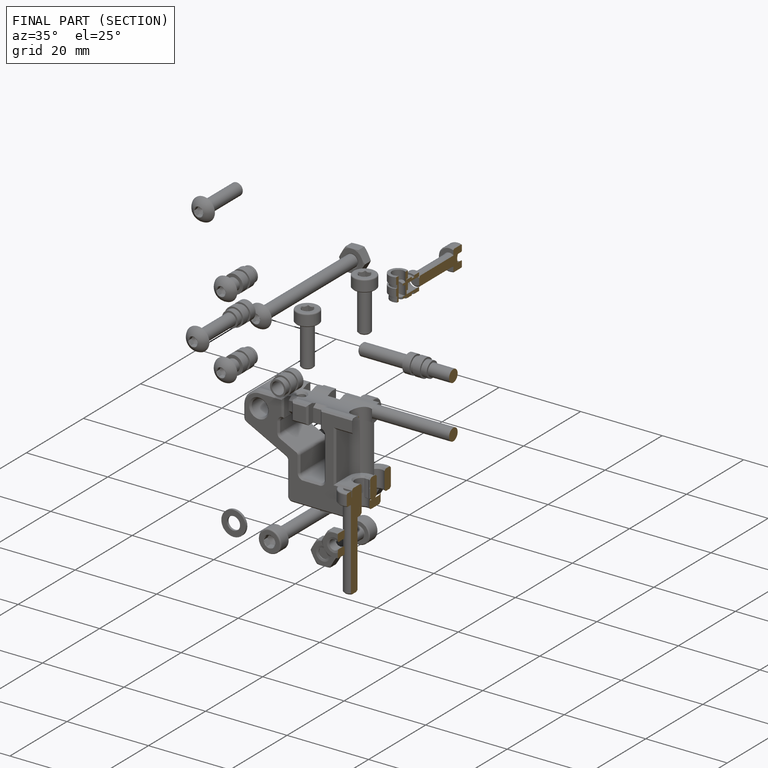
[diagram: finished part — half-section view (interior)]
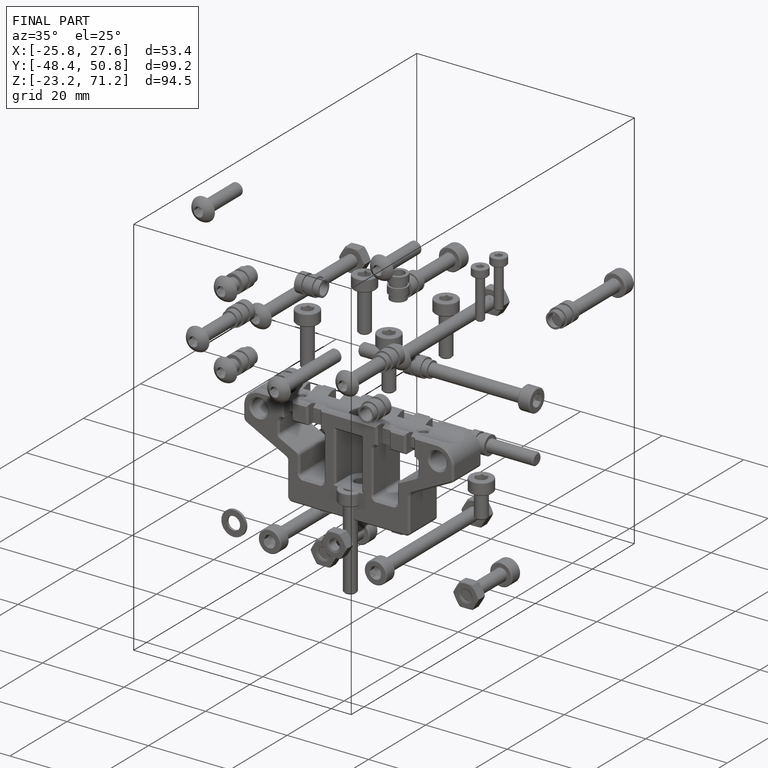
[diagram: finished part — iso view with bounding-box wireframe]
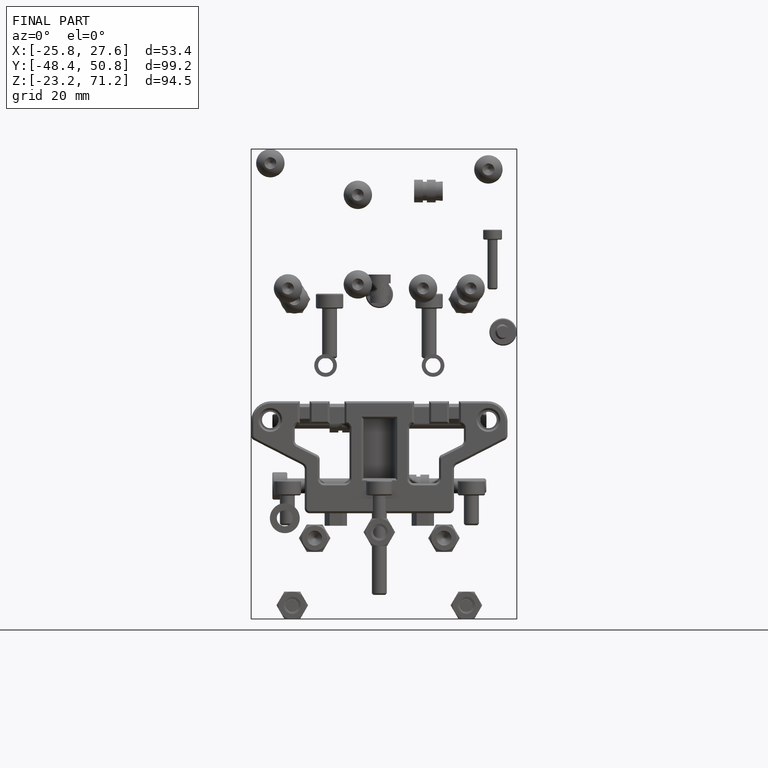
[diagram: finished part — front view with bounding-box wireframe]
